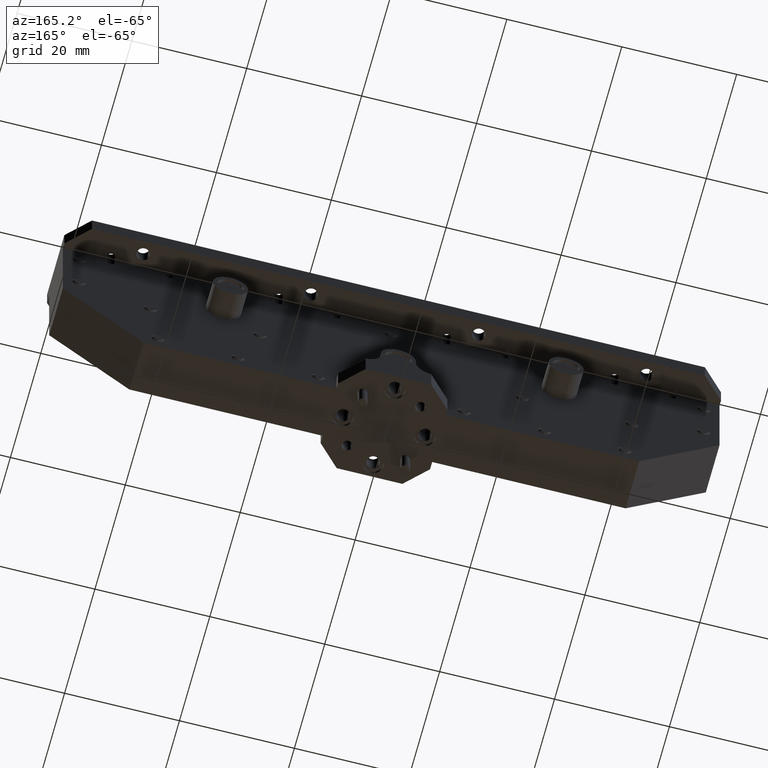
[diagram: clean part render]
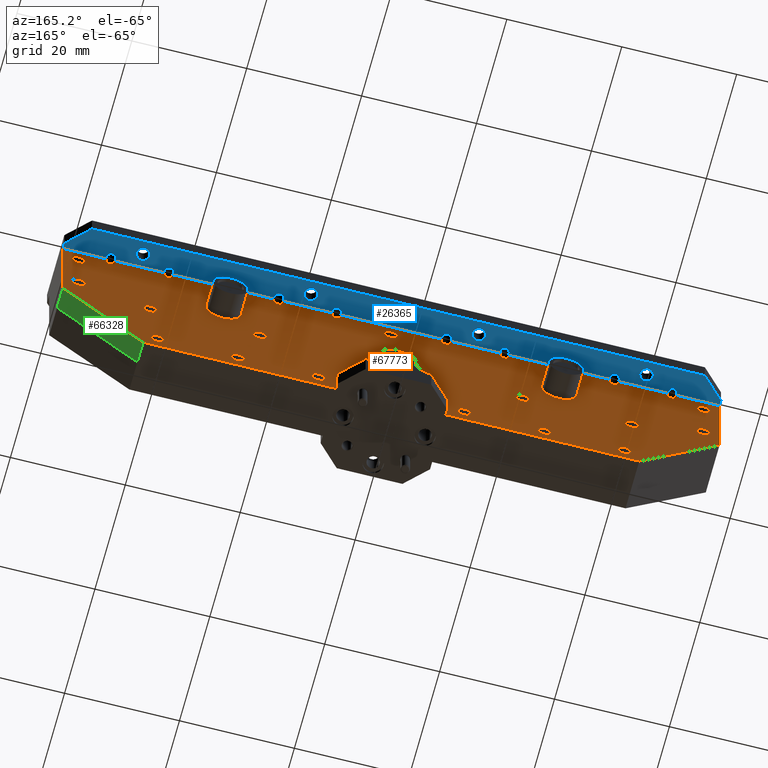
[diagram: same view with three faces highlighted in distinct colors, each labeled with its STEP entity id]
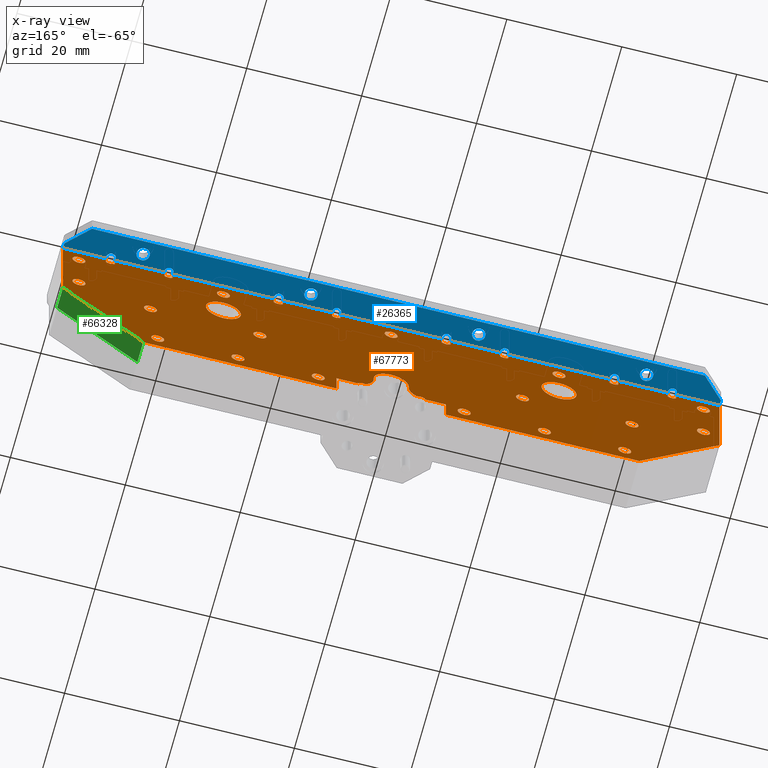
[diagram: x-ray of the same camera — body ghosted, the three highlighted faces saturated]
A machine part, auxiliary view with three faces highlighted in distinct colors.
The next image is the same camera in x-ray (body ghosted, the three faces saturated) — at least one of them is partly hidden behind the body in this view.
Their STEP definitions:

[orange] entity #67773 — the highlighted planar face has unit normal (0, -1, 0).
#45 = AXIS2_PLACEMENT_3D ( 'NONE', #103034, #53309, #3115 ) ;
#114 = CARTESIAN_POINT ( 'NONE',  ( 1.536288600358622000, 0.1499999999999999900, 0.1858338379013907400 ) ) ;
#165 = CARTESIAN_POINT ( 'NONE',  ( 1.699999999999998200, 0.1499999999999999900, -0.9250000000000001600 ) ) ;
#233 = AXIS2_PLACEMENT_3D ( 'NONE', #3299, #61993, #11684 ) ;
#374 = DIRECTION ( 'NONE',  ( 0.0000000000000000000, 0.0000000000000000000, 1.000000000000000000 ) ) ;
#467 = ORIENTED_EDGE ( 'NONE', *, *, #56084, .F. ) ;
#566 = CARTESIAN_POINT ( 'NONE',  ( -1.599999999999999900, 0.1500000000000000500, -0.7675000000000005200 ) ) ;
#588 = LINE ( 'NONE', #82981, #64930 ) ;
#591 = ORIENTED_EDGE ( 'NONE', *, *, #44220, .T. ) ;
#622 = EDGE_CURVE ( 'NONE', #40687, #21455, #21241, .T. ) ;
#672 = VECTOR ( 'NONE', #86181, 39.37007874015748100 ) ;
#753 = VECTOR ( 'NONE', #8675, 39.37007874015748100 ) ;
#811 = CARTESIAN_POINT ( 'NONE',  ( 1.554491263112224700, 0.1499999999999999900, 0.1949999999999846600 ) ) ;
#965 = CARTESIAN_POINT ( 'NONE',  ( 1.149999999999999900, 0.1500000000000000500, 0.1250000000000003100 ) ) ;
#1091 = CARTESIAN_POINT ( 'NONE',  ( -0.7762778678929021000, 0.1499999999999999700, 0.1836378929655188600 ) ) ;
#1239 = CARTESIAN_POINT ( 'NONE',  ( -0.3448010953484182400, 0.1499999999999999900, 0.1950000000000003100 ) ) ;
#1268 = VECTOR ( 'NONE', #95054, 39.37007874015748100 ) ;
#1487 = LINE ( 'NONE', #21654, #63155 ) ;
#1525 = CIRCLE ( 'NONE', #105752, 0.1199999999999998800 ) ;
#1564 = ORIENTED_EDGE ( 'NONE', *, *, #46166, .F. ) ;
#1580 = FACE_BOUND ( 'NONE', #65898, .T. ) ;
#1653 = ORIENTED_EDGE ( 'NONE', *, *, #61610, .T. ) ;
#1743 = CARTESIAN_POINT ( 'NONE',  ( 1.497761172470325900, 0.1499999999999999900, 0.1950000000000000300 ) ) ;
#1770 = LINE ( 'NONE', #50237, #66167 ) ;
#2191 = CARTESIAN_POINT ( 'NONE',  ( -1.149999999999999900, 0.1500000000000000500, 0.1250000000000003100 ) ) ;
#2278 = B_SPLINE_CURVE_WITH_KNOTS ( 'NONE', 3,
 ( #42624, #51074, #9297, #68078, #17656, #76412, #26118, #84700, #34515, #92982, #42987, #101238, #51440, #1239 ),
 .UNSPECIFIED., .F., .F.,
 ( 4, 2, 2, 2, 2, 2, 4 ),
 ( 0.004142231111657583900, 0.004578358877393636300, 0.004796422760261666000, 0.005014486643129695600, 0.005232550525997724400, 0.005450614408865753200, 0.005886742174601813400 ),
 .UNSPECIFIED. ) ;
#2525 = EDGE_CURVE ( 'NONE', #62374, #35143, #43848, .T. ) ;
#2571 = VECTOR ( 'NONE', #70074, 39.37007874015748100 ) ;
#2951 = CARTESIAN_POINT ( 'NONE',  ( 0.0000000000000000000, 0.1499999999999999900, 0.0000000000000000000 ) ) ;
#3077 = CARTESIAN_POINT ( 'NONE',  ( 1.945263712787908900, 0.1500000000000000800, 0.1894592701082589100 ) ) ;
#3115 = DIRECTION ( 'NONE',  ( 0.0000000000000000000, 0.0000000000000000000, 1.000000000000000000 ) ) ;
#3206 = EDGE_LOOP ( 'NONE', ( #92915, #44736 ) ) ;
#3299 = CARTESIAN_POINT ( 'NONE',  ( 1.049999999999999800, 0.1500000000000000500, -0.8120000000000003900 ) ) ;
#3573 = CIRCLE ( 'NONE', #29304, 0.1199999999999999500 ) ;
#3574 = CARTESIAN_POINT ( 'NONE',  ( -2.139999999999999700, 0.1500000000000000500, -0.2249999999999996400 ) ) ;
#3580 = DIRECTION ( 'NONE',  ( 0.0000000000000000000, 0.0000000000000000000, 1.000000000000000000 ) ) ;
#3581 = CARTESIAN_POINT ( 'NONE',  ( 1.649999999999999700, 0.1500000000000000500, -0.4194999999999992600 ) ) ;
#3597 = DIRECTION ( 'NONE',  ( 0.0000000000000000000, 0.0000000000000000000, -1.000000000000000000 ) ) ;
#3739 = B_SPLINE_CURVE_WITH_KNOTS ( 'NONE', 3,
 ( #96051, #104253, #43638, #11711, #10291, #10733, #10644, #96488, #105077, #114, #51498, #51869, #52926, #53786 ),
 .UNSPECIFIED., .F., .F.,
 ( 4, 2, 2, 2, 2, 2, 4 ),
 ( 0.003820113746241979200, 0.004213695920972548200, 0.004410487008337822900, 0.004607278095703097600, 0.004804069183068372300, 0.005000860270433647000, 0.005394442445164216400 ),
 .UNSPECIFIED. ) ;
#3887 = ORIENTED_EDGE ( 'NONE', *, *, #96518, .F. ) ;
#4057 = VERTEX_POINT ( 'NONE', #20461 ) ;
#4063 = EDGE_CURVE ( 'NONE', #45999, #82837, #19640, .T. ) ;
#4515 = LINE ( 'NONE', #48517, #90872 ) ;
#4582 = DIRECTION ( 'NONE',  ( -0.0000000000000000000, 1.000000000000000000, -0.0000000000000000000 ) ) ;
#4645 = ORIENTED_EDGE ( 'NONE', *, *, #103315, .T. ) ;
#4688 = CARTESIAN_POINT ( 'NONE',  ( -1.557451340234139900, 0.1499999999999999900, 0.1950000000000000300 ) ) ;
#4829 = VERTEX_POINT ( 'NONE', #100218 ) ;
#5226 = EDGE_CURVE ( 'NONE', #71015, #35382, #102385, .T. ) ;
#5379 = LINE ( 'NONE', #99410, #91732 ) ;
#5388 = EDGE_CURVE ( 'NONE', #20609, #8268, #1770, .T. ) ;
#5573 = CARTESIAN_POINT ( 'NONE',  ( -1.952238827529673600, 0.1499999999999999900, 0.1950000000000000300 ) ) ;
#5879 = EDGE_CURVE ( 'NONE', #27012, #81375, #3739, .T. ) ;
#5918 = CARTESIAN_POINT ( 'NONE',  ( -1.895508736887774800, 0.1499999999999999900, 0.1949999999999847100 ) ) ;
#6201 = CARTESIAN_POINT ( 'NONE',  ( 1.600000000000000300, 0.1500000000000000500, -0.8564999999999991500 ) ) ;
#6457 = CARTESIAN_POINT ( 'NONE',  ( 0.7876006221321424400, 0.1500000000000000200, 0.1857390656520916400 ) ) ;
#6499 = CARTESIAN_POINT ( 'NONE',  ( 0.2005684074176618300, 0.1499999999999999900, -0.7442306900326187700 ) ) ;
#6642 = EDGE_LOOP ( 'NONE', ( #47248, #107074 ) ) ;
#6717 = DIRECTION ( 'NONE',  ( 0.0000000000000000000, 0.0000000000000000000, 1.000000000000000000 ) ) ;
#6769 = DIRECTION ( 'NONE',  ( -0.0000000000000000000, 1.000000000000000000, -0.0000000000000000000 ) ) ;
#6803 = ORIENTED_EDGE ( 'NONE', *, *, #102969, .T. ) ;
#6881 = CARTESIAN_POINT ( 'NONE',  ( -0.8022388275296735700, 0.1499999999999999900, 0.1950000000000000300 ) ) ;
#7167 = EDGE_CURVE ( 'NONE', #74315, #42057, #57465, .T. ) ;
#7408 = VERTEX_POINT ( 'NONE', #50010 ) ;
#7587 = CARTESIAN_POINT ( 'NONE',  ( -1.504736287212092000, 0.1499999999999999900, 0.1894592701082589100 ) ) ;
#7632 = ORIENTED_EDGE ( 'NONE', *, *, #102241, .T. ) ;
#7668 = ORIENTED_EDGE ( 'NONE', *, *, #97739, .T. ) ;
#7696 = CARTESIAN_POINT ( 'NONE',  ( -0.2258320770568925400, 0.1500000000000000500, -0.7475464904255644200 ) ) ;
#7697 = DIRECTION ( 'NONE',  ( 0.0000000000000000000, 0.0000000000000000000, 1.000000000000000000 ) ) ;
#8177 = CARTESIAN_POINT ( 'NONE',  ( 0.3788506155858855100, 0.1499999999999999700, 0.1836794531516312300 ) ) ;
#8194 = VECTOR ( 'NONE', #80147, 39.37007874015748100 ) ;
#8268 = VERTEX_POINT ( 'NONE', #82402 ) ;
#8353 = VERTEX_POINT ( 'NONE', #33610 ) ;
#8464 = CARTESIAN_POINT ( 'NONE',  ( -1.649999999999999700, 0.1500000000000000500, -0.3749999999999997800 ) ) ;
#8558 = DIRECTION ( 'NONE',  ( -0.7071067811865492400, -0.0000000000000000000, -0.7071067811865459100 ) ) ;
#8593 = CARTESIAN_POINT ( 'NONE',  ( 0.1199999999999988400, 0.1499999999999999900, -0.6250000000000001100 ) ) ;
#8675 = DIRECTION ( 'NONE',  ( -1.000000000000000000, -0.0000000000000000000, 8.034847040189021100E-017 ) ) ;
#9158 = VECTOR ( 'NONE', #20805, 39.37007874015748100 ) ;
#9228 = LINE ( 'NONE', #93199, #31442 ) ;
#9233 = EDGE_CURVE ( 'NONE', #52240, #48064, #66019, .T. ) ;
#9237 = CARTESIAN_POINT ( 'NONE',  ( -1.952238827529673600, 0.1499999999999999900, 0.1950000000000000300 ) ) ;
#9297 = CARTESIAN_POINT ( 'NONE',  ( -0.3974492089406334000, 0.1499999999999999400, 0.1894209283568170900 ) ) ;
#9329 = DIRECTION ( 'NONE',  ( -0.0000000000000000000, 1.000000000000000000, -0.0000000000000000000 ) ) ;
#9365 = DIRECTION ( 'NONE',  ( 0.0000000000000000000, 0.0000000000000000000, 1.000000000000000000 ) ) ;
#9487 = ORIENTED_EDGE ( 'NONE', *, *, #56001, .T. ) ;
#9495 = CARTESIAN_POINT ( 'NONE',  ( -0.7685826124977089800, 0.1500000000000000200, 0.1842374201187034200 ) ) ;
#9542 = DIRECTION ( 'NONE',  ( -4.268512490100409400E-016, 0.0000000000000000000, 1.000000000000000000 ) ) ;
#9607 = CIRCLE ( 'NONE', #36127, 0.04449999999999948400 ) ;
#9654 = ORIENTED_EDGE ( 'NONE', *, *, #85965, .F. ) ;
#9726 = EDGE_CURVE ( 'NONE', #40166, #37656, #80052, .T. ) ;
#9804 = DIRECTION ( 'NONE',  ( -0.0000000000000000000, -0.0000000000000000000, 1.000000000000000000 ) ) ;
#10001 = AXIS2_PLACEMENT_3D ( 'NONE', #73398, #22986, #81685 ) ;
#10291 = CARTESIAN_POINT ( 'NONE',  ( 1.516232268394620100, 0.1499999999999999900, 0.1857259215789929300 ) ) ;
#10561 = VERTEX_POINT ( 'NONE', #52513 ) ;
#10587 = DIRECTION ( 'NONE',  ( 0.0000000000000000000, 0.0000000000000000000, 1.000000000000000000 ) ) ;
#10628 = VECTOR ( 'NONE', #72474, 39.37007874015748100 ) ;
#10633 = EDGE_CURVE ( 'NONE', #95655, #59526, #23481, .T. ) ;
#10644 = CARTESIAN_POINT ( 'NONE',  ( 1.523722132107097500, 0.1500000000000000200, 0.1836378929655189100 ) ) ;
#10648 = AXIS2_PLACEMENT_3D ( 'NONE', #40843, #99129, #49361 ) ;
#10733 = CARTESIAN_POINT ( 'NONE',  ( 1.521136587996360500, 0.1499999999999999900, 0.1841609887189386000 ) ) ;
#10746 = CARTESIAN_POINT ( 'NONE',  ( 1.897539779201811200, 0.1500000000000000200, 0.1921957309837062100 ) ) ;
#11121 = CARTESIAN_POINT ( 'NONE',  ( -1.049999999999999800, 0.1500000000000000500, -0.7675000000000006300 ) ) ;
#11288 = VERTEX_POINT ( 'NONE', #4688 ) ;
#11329 = DIRECTION ( 'NONE',  ( 0.0000000000000000000, -0.0000000000000000000, -1.000000000000000000 ) ) ;
#11339 = CARTESIAN_POINT ( 'NONE',  ( 2.250000000000000400, 0.1499999999999999900, 0.3749999999999997800 ) ) ;
#11340 = VERTEX_POINT ( 'NONE', #47193 ) ;
#11454 = CARTESIAN_POINT ( 'NONE',  ( 1.955198904651581600, 0.1499999999999999900, 0.1950000000000002300 ) ) ;
#11565 = ORIENTED_EDGE ( 'NONE', *, *, #10633, .T. ) ;
#11684 = DIRECTION ( 'NONE',  ( 0.0000000000000000000, 0.0000000000000000000, 1.000000000000000000 ) ) ;
#11711 = CARTESIAN_POINT ( 'NONE',  ( 1.513845314674737700, 0.1499999999999999900, 0.1867492879359235200 ) ) ;
#11737 = VERTEX_POINT ( 'NONE', #53315 ) ;
#11901 = ORIENTED_EDGE ( 'NONE', *, *, #16537, .T. ) ;
#11968 = DIRECTION ( 'NONE',  ( 0.0000000000000000000, 0.0000000000000000000, 1.000000000000000000 ) ) ;
#12311 = CIRCLE ( 'NONE', #63271, 0.04449999999999948400 ) ;
#12620 = CARTESIAN_POINT ( 'NONE',  ( 1.149999999999999900, 0.1499999999999999700, -0.1250000000000001700 ) ) ;
#12740 = ORIENTED_EDGE ( 'NONE', *, *, #73092, .T. ) ;
#12887 = VERTEX_POINT ( 'NONE', #21168 ) ;
#13003 = DIRECTION ( 'NONE',  ( 0.0000000000000000000, 0.0000000000000000000, -1.000000000000000000 ) ) ;
#13095 = EDGE_LOOP ( 'NONE', ( #100947, #35561 ) ) ;
#13138 = EDGE_CURVE ( 'NONE', #14501, #75212, #1525, .T. ) ;
#13158 = VERTEX_POINT ( 'NONE', #25599 ) ;
#13208 = LINE ( 'NONE', #22767, #10628 ) ;
#13254 = FACE_OUTER_BOUND ( 'NONE', #31497, .T. ) ;
#13322 = CARTESIAN_POINT ( 'NONE',  ( -1.557451340234139700, 0.1499999999999999900, 0.3750000000000000600 ) ) ;
#13336 = EDGE_CURVE ( 'NONE', #55767, #4829, #105793, .T. ) ;
#13613 = CARTESIAN_POINT ( 'NONE',  ( 5.449678256205679700E-018, 0.1500000000000000500, -0.4194999999999992600 ) ) ;
#13897 = CARTESIAN_POINT ( 'NONE',  ( -1.943177421391361300, 0.1499999999999999900, 0.1900249512153215400 ) ) ;
#13979 = EDGE_CURVE ( 'NONE', #107505, #81091, #63887, .T. ) ;
#14050 = CARTESIAN_POINT ( 'NONE',  ( 0.8051989046515821700, 0.1499999999999999900, 0.1950000000000002800 ) ) ;
#14071 = CARTESIAN_POINT ( 'NONE',  ( 1.892548659765860100, 0.1499999999999999900, 0.3750000000000000600 ) ) ;
#14091 = CARTESIAN_POINT ( 'NONE',  ( 1.600000000000000300, 0.1500000000000000500, -0.7675000000000001800 ) ) ;
#14143 = EDGE_CURVE ( 'NONE', #55378, #4057, #98749, .T. ) ;
#14256 = CARTESIAN_POINT ( 'NONE',  ( -1.049999999999999800, 0.1500000000000000500, -0.8564999999999995900 ) ) ;
#14501 = VERTEX_POINT ( 'NONE', #63748 ) ;
#14600 = EDGE_CURVE ( 'NONE', #75260, #11340, #4515, .T. ) ;
#14646 = DIRECTION ( 'NONE',  ( -0.0000000000000000000, 1.000000000000000000, -0.0000000000000000000 ) ) ;
#14654 = CARTESIAN_POINT ( 'NONE',  ( -1.049999999999999800, 0.1500000000000000500, -0.8120000000000000600 ) ) ;
#14672 = EDGE_CURVE ( 'NONE', #80004, #53949, #77955, .T. ) ;
#14815 = CARTESIAN_POINT ( 'NONE',  ( 0.8002457017466049200, 0.1499999999999999700, 0.1922170344516766500 ) ) ;
#14865 = CARTESIAN_POINT ( 'NONE',  ( 0.1945571465321666900, 0.1499999999999999900, -0.7446461339591226000 ) ) ;
#14879 = CIRCLE ( 'NONE', #53319, 0.1200000000000005900 ) ;
#15123 = ORIENTED_EDGE ( 'NONE', *, *, #69947, .F. ) ;
#15554 = LINE ( 'NONE', #95564, #79847 ) ;
#15604 = AXIS2_PLACEMENT_3D ( 'NONE', #48930, #106915, #57339 ) ;
#15655 = VERTEX_POINT ( 'NONE', #68022 ) ;
#15678 = CARTESIAN_POINT ( 'NONE',  ( -0.1838137954700175300, 0.1499999999999999700, -0.7412056973242632200 ) ) ;
#15730 = CARTESIAN_POINT ( 'NONE',  ( 1.497761172470325900, 0.1499999999999999900, 0.2449999999999997700 ) ) ;
#15900 = FACE_BOUND ( 'NONE', #33744, .T. ) ;
#15944 = CARTESIAN_POINT ( 'NONE',  ( -1.494801095348417900, 0.1499999999999999900, 0.1950000000000002300 ) ) ;
#16103 = EDGE_CURVE ( 'NONE', #88954, #66905, #89501, .T. ) ;
#16137 = VECTOR ( 'NONE', #23618, 39.37007874015748100 ) ;
#16512 = ORIENTED_EDGE ( 'NONE', *, *, #48767, .T. ) ;
#16537 = EDGE_CURVE ( 'NONE', #81375, #74961, #94808, .T. ) ;
#16543 = CARTESIAN_POINT ( 'NONE',  ( 0.3862886003586227200, 0.1499999999999999700, 0.1858338379013906600 ) ) ;
#16596 = EDGE_CURVE ( 'NONE', #8353, #11737, #22849, .T. ) ;
#16816 = DIRECTION ( 'NONE',  ( 0.0000000000000000000, 0.0000000000000000000, 1.000000000000000000 ) ) ;
#17119 = ORIENTED_EDGE ( 'NONE', *, *, #92989, .T. ) ;
#17626 = EDGE_CURVE ( 'NONE', #59978, #50420, #95625, .T. ) ;
#17656 = CARTESIAN_POINT ( 'NONE',  ( -0.3871015480844097700, 0.1499999999999999700, 0.1844951420047603000 ) ) ;
#17661 = CARTESIAN_POINT ( 'NONE',  ( 1.649999999999999700, 0.1500000000000000500, -0.3305000000000002900 ) ) ;
#17747 = VERTEX_POINT ( 'NONE', #11121 ) ;
#17861 = CARTESIAN_POINT ( 'NONE',  ( -0.7613744911860255100, 0.1499999999999999900, 0.1868460783373942500 ) ) ;
#18062 = ORIENTED_EDGE ( 'NONE', *, *, #4063, .F. ) ;
#18084 = ORIENTED_EDGE ( 'NONE', *, *, #48612, .T. ) ;
#18244 = VECTOR ( 'NONE', #102900, 39.37007874015748100 ) ;
#18311 = CARTESIAN_POINT ( 'NONE',  ( -1.895508736887774800, 0.1499999999999999900, 0.1949999999999847100 ) ) ;
#18520 = FACE_BOUND ( 'NONE', #34429, .T. ) ;
#18701 = AXIS2_PLACEMENT_3D ( 'NONE', #91350, #41280, #99570 ) ;
#18809 = ORIENTED_EDGE ( 'NONE', *, *, #91245, .T. ) ;
#18833 = EDGE_CURVE ( 'NONE', #82837, #45999, #37578, .T. ) ;
#18980 = DIRECTION ( 'NONE',  ( -0.0000000000000000000, 1.000000000000000000, -0.0000000000000000000 ) ) ;
#19065 = DIRECTION ( 'NONE',  ( 1.000000000000000000, 0.0000000000000000000, 1.214154663850783700E-016 ) ) ;
#19125 = EDGE_CURVE ( 'NONE', #74961, #28603, #102865, .T. ) ;
#19175 = VERTEX_POINT ( 'NONE', #15730 ) ;
#19370 = PLANE ( 'NONE',  #104717 ) ;
#19476 = CARTESIAN_POINT ( 'NONE',  ( 1.902550791059366600, 0.1499999999999999900, 0.1894209283568170600 ) ) ;
#19640 = CIRCLE ( 'NONE', #89416, 0.04449999999999948400 ) ;
#19683 = LINE ( 'NONE', #44538, #105754 ) ;
#20146 = DIRECTION ( 'NONE',  ( -0.0000000000000000000, 1.000000000000000000, -0.0000000000000000000 ) ) ;
#20461 = CARTESIAN_POINT ( 'NONE',  ( 1.699999999999998200, 0.1499999999999999900, -0.9250000000000001600 ) ) ;
#20605 = DIRECTION ( 'NONE',  ( 0.0000000000000000000, 0.0000000000000000000, 1.000000000000000000 ) ) ;
#20609 = VERTEX_POINT ( 'NONE', #63513 ) ;
#20656 = CIRCLE ( 'NONE', #104067, 0.04449999999999948400 ) ;
#20689 = VECTOR ( 'NONE', #13003, 39.37007874015748100 ) ;
#20750 = DIRECTION ( 'NONE',  ( 0.0000000000000000000, 0.0000000000000000000, -1.000000000000000000 ) ) ;
#20805 = DIRECTION ( 'NONE',  ( -0.0000000000000000000, -0.0000000000000000000, 1.000000000000000000 ) ) ;
#20813 = LINE ( 'NONE', #11339, #18244 ) ;
#20968 = CARTESIAN_POINT ( 'NONE',  ( -1.599999999999999900, 0.1500000000000000500, -0.8119999999999999400 ) ) ;
#20995 = DIRECTION ( 'NONE',  ( 0.0000000000000000000, 0.0000000000000000000, -1.000000000000000000 ) ) ;
#21051 = DIRECTION ( 'NONE',  ( -0.0000000000000000000, 1.000000000000000000, -0.0000000000000000000 ) ) ;
#21099 = FACE_BOUND ( 'NONE', #57179, .T. ) ;
#21168 = CARTESIAN_POINT ( 'NONE',  ( -1.895508736887759200, 0.1499999999999999900, 0.2449999999999992700 ) ) ;
#21218 = CARTESIAN_POINT ( 'NONE',  ( -0.7455087368877589800, 0.1499999999999999900, 0.3750000000000000600 ) ) ;
#21241 = CIRCLE ( 'NONE', #60448, 0.04449999999999948400 ) ;
#21399 = CARTESIAN_POINT ( 'NONE',  ( 1.393242476768774200E-016, 0.1499999999999999900, -0.7649999999999999000 ) ) ;
#21455 = VERTEX_POINT ( 'NONE', #86609 ) ;
#21461 = VECTOR ( 'NONE', #19065, 39.37007874015748100 ) ;
#21654 = CARTESIAN_POINT ( 'NONE',  ( -2.974678926434414000E-017, 0.1499999999999999900, 0.2449999999999995000 ) ) ;
#21938 = ORIENTED_EDGE ( 'NONE', *, *, #16103, .T. ) ;
#22097 = DIRECTION ( 'NONE',  ( 0.0000000000000000000, 0.0000000000000000000, -1.000000000000000000 ) ) ;
#22215 = AXIS2_PLACEMENT_3D ( 'NONE', #56990, #6769, #65512 ) ;
#22293 = CARTESIAN_POINT ( 'NONE',  ( -1.933767731605380100, 0.1499999999999999900, 0.1857259215789930100 ) ) ;
#22501 = DIRECTION ( 'NONE',  ( -0.0000000000000000000, -0.0000000000000000000, 1.000000000000000000 ) ) ;
#22767 = CARTESIAN_POINT ( 'NONE',  ( -2.974678926434414000E-017, 0.1499999999999999900, 0.2449999999999995000 ) ) ;
#22849 = LINE ( 'NONE', #68932, #672 ) ;
#22924 = LINE ( 'NONE', #13322, #45286 ) ;
#22986 = DIRECTION ( 'NONE',  ( -0.0000000000000000000, 1.000000000000000000, -0.0000000000000000000 ) ) ;
#23041 = DIRECTION ( 'NONE',  ( 0.0000000000000000000, 0.0000000000000000000, 1.000000000000000000 ) ) ;
#23062 = EDGE_CURVE ( 'NONE', #53953, #11288, #22924, .T. ) ;
#23086 = CARTESIAN_POINT ( 'NONE',  ( -0.3448010953484182400, 0.1499999999999999900, 0.1950000000000003100 ) ) ;
#23258 = CARTESIAN_POINT ( 'NONE',  ( 0.1850955613153358600, 0.1499999999999999900, -0.7479848390912282600 ) ) ;
#23260 = CIRCLE ( 'NONE', #22215, 0.04449999999999948400 ) ;
#23289 = VERTEX_POINT ( 'NONE', #92289 ) ;
#23305 = EDGE_LOOP ( 'NONE', ( #3887, #15123 ) ) ;
#23481 = LINE ( 'NONE', #86764, #1268 ) ;
#23502 = DIRECTION ( 'NONE',  ( 0.0000000000000000000, 0.0000000000000000000, -1.000000000000000000 ) ) ;
#23509 = VECTOR ( 'NONE', #54866, 39.37007874015748100 ) ;
#23618 = DIRECTION ( 'NONE',  ( 1.000000000000000000, 0.0000000000000000000, 1.214154663850783700E-016 ) ) ;
#23806 = FACE_BOUND ( 'NONE', #98692, .T. ) ;
#23883 = CARTESIAN_POINT ( 'NONE',  ( 1.497761172470325900, 0.1499999999999999900, 0.3750000000000000600 ) ) ;
#24019 = CARTESIAN_POINT ( 'NONE',  ( -1.547449208940632900, 0.1499999999999999900, 0.1894209283568170600 ) ) ;
#24141 = CIRCLE ( 'NONE', #45, 0.04449999999999948400 ) ;
#24192 = DIRECTION ( 'NONE',  ( 0.0000000000000000000, -1.000000000000000000, 0.0000000000000000000 ) ) ;
#24366 = CARTESIAN_POINT ( 'NONE',  ( -1.149999999999999900, 0.1499999999999999700, -0.2450000000000000500 ) ) ;
#24466 = EDGE_CURVE ( 'NONE', #87636, #36665, #19683, .T. ) ;
#24638 = CARTESIAN_POINT ( 'NONE',  ( 1.049999999999999800, 0.1500000000000000500, -0.7675000000000008500 ) ) ;
#24917 = ORIENTED_EDGE ( 'NONE', *, *, #86940, .F. ) ;
#24994 = CARTESIAN_POINT ( 'NONE',  ( 0.3955416636602237000, 0.1499999999999999900, 0.1900878805995128400 ) ) ;
#25599 = CARTESIAN_POINT ( 'NONE',  ( 1.149999999999999900, 0.1500000000000000500, 0.08050000000000082100 ) ) ;
#25972 = CARTESIAN_POINT ( 'NONE',  ( -0.8022388275296735700, 0.1499999999999999900, 0.1950000000000000300 ) ) ;
#26118 = CARTESIAN_POINT ( 'NONE',  ( -0.3788522302975967900, 0.1499999999999999700, 0.1819899896287413600 ) ) ;
#26318 = CARTESIAN_POINT ( 'NONE',  ( -0.7499746727515078600, 0.1499999999999999900, 0.1925247185662248000 ) ) ;
#26338 = VECTOR ( 'NONE', #74540, 39.37007874015748100 ) ;
#26457 = CIRCLE ( 'NONE', #68473, 0.04449999999999948400 ) ;
#26515 = CARTESIAN_POINT ( 'NONE',  ( -1.142647958888417800E-015, 0.1499999999999999700, -0.6250000000000001100 ) ) ;
#27012 = VERTEX_POINT ( 'NONE', #1743 ) ;
#27197 = EDGE_CURVE ( 'NONE', #10561, #32297, #96825, .T. ) ;
#27338 = EDGE_LOOP ( 'NONE', ( #74028, #18062 ) ) ;
#27663 = CARTESIAN_POINT ( 'NONE',  ( -0.2400000000000011800, 0.1499999999999999700, -0.6450000000000001300 ) ) ;
#27927 = CARTESIAN_POINT ( 'NONE',  ( 1.912898451915590300, 0.1499999999999999900, 0.1844951420047603900 ) ) ;
#27941 = ORIENTED_EDGE ( 'NONE', *, *, #27197, .F. ) ;
#27998 = DIRECTION ( 'NONE',  ( -1.000000000000000000, -0.0000000000000000000, 8.034847040189021100E-017 ) ) ;
#28028 = LINE ( 'NONE', #68337, #50390 ) ;
#28200 = B_SPLINE_CURVE_WITH_KNOTS ( 'NONE', 3,
 ( #25972, #76264, #92833, #42824, #101075, #51288, #1091, #59780, #9495, #68297, #17861, #76622, #26318, #84890 ),
 .UNSPECIFIED., .F., .F.,
 ( 4, 2, 2, 2, 2, 2, 4 ),
 ( 0.003820113746241976200, 0.004213695920972534300, 0.004410487008337813300, 0.004607278095703092400, 0.004804069183068371400, 0.005000860270433650500, 0.005394442445164218100 ),
 .UNSPECIFIED. ) ;
#28594 = CARTESIAN_POINT ( 'NONE',  ( 1.149999999999999900, 0.1500000000000000500, 0.1694999999999997900 ) ) ;
#28603 = VERTEX_POINT ( 'NONE', #103427 ) ;
#28653 = AXIS2_PLACEMENT_3D ( 'NONE', #103522, #53804, #3597 ) ;
#29202 = CARTESIAN_POINT ( 'NONE',  ( 0.2399999999999988500, 0.1499999999999999900, -0.7649999999999999000 ) ) ;
#29203 = AXIS2_PLACEMENT_3D ( 'NONE', #40684, #98973, #49206 ) ;
#29304 = AXIS2_PLACEMENT_3D ( 'NONE', #87468, #37345, #95759 ) ;
#29542 = VERTEX_POINT ( 'NONE', #61286 ) ;
#29712 = CARTESIAN_POINT ( 'NONE',  ( -1.699999999999997500, 0.1499999999999999900, -0.9249999999999998200 ) ) ;
#30048 = CARTESIAN_POINT ( 'NONE',  ( 2.250000000000000400, 0.1499999999999999900, -0.3750000000000003900 ) ) ;
#30722 = CARTESIAN_POINT ( 'NONE',  ( -1.926277867892902500, 0.1500000000000000200, 0.1836378929655190000 ) ) ;
#30862 = ORIENTED_EDGE ( 'NONE', *, *, #5226, .F. ) ;
#30995 = CARTESIAN_POINT ( 'NONE',  ( -1.557451340234139700, 0.1499999999999999900, 0.2449999999999993000 ) ) ;
#31250 = CIRCLE ( 'NONE', #59142, 0.04449999999999948400 ) ;
#31264 = CARTESIAN_POINT ( 'NONE',  ( 0.7602785172579856800, 0.1499999999999999900, 0.1856782066199718600 ) ) ;
#31314 = CARTESIAN_POINT ( 'NONE',  ( 0.2226614844736424800, 0.1499999999999999900, -0.7530772311790900900 ) ) ;
#31320 = CARTESIAN_POINT ( 'NONE',  ( -2.249999999999999600, 0.1499999999999997700, 0.2449999999999992200 ) ) ;
#31442 = VECTOR ( 'NONE', #34712, 39.37007874015748100 ) ;
#31474 = EDGE_CURVE ( 'NONE', #15655, #68234, #52765, .T. ) ;
#31497 = EDGE_LOOP ( 'NONE', ( #9487, #18809, #47714, #63092, #85717, #62240, #71368, #11565, #90634, #7632, #80270, #69060, #68614, #59317, #58024, #73791, #16512, #6803, #64228, #75030, #55766, #11901, #31508, #87110, #81282, #100603, #72205, #49806, #108185, #100551, #43129, #18084, #47192, #17119, #61392, #32886, #96472, #103073, #94845, #43164, #591, #21938, #7668, #78879, #61505, #12740, #74377, #73273, #49921, #108123, #68719, #4645, #1653, #94707, #102002 ) ) ;
#31508 = ORIENTED_EDGE ( 'NONE', *, *, #19125, .T. ) ;
#31846 = DIRECTION ( 'NONE',  ( 1.000000000000000000, 0.0000000000000000000, 1.214154663850783700E-016 ) ) ;
#32040 = B_SPLINE_CURVE_WITH_KNOTS ( 'NONE', 3,
 ( #65992, #74038, #24019, #82647, #32422, #90948, #40869, #99163, #49387, #107381, #57822, #7587, #66353, #15944 ),
 .UNSPECIFIED., .F., .F.,
 ( 4, 2, 2, 2, 2, 2, 4 ),
 ( 0.004142231111657614300, 0.004578358877393673600, 0.004796422760261703300, 0.005014486643129733800, 0.005232550525997763400, 0.005450614408865794000, 0.005886742174601835100 ),
 .UNSPECIFIED. ) ;
#32297 = VERTEX_POINT ( 'NONE', #53231 ) ;
#32422 = CARTESIAN_POINT ( 'NONE',  ( -1.537101548084409000, 0.1499999999999999700, 0.1844951420047603600 ) ) ;
#32527 = CARTESIAN_POINT ( 'NONE',  ( -0.1907215516029445700, 0.1499999999999999700, -0.7384628256782805900 ) ) ;
#32886 = ORIENTED_EDGE ( 'NONE', *, *, #86307, .T. ) ;
#32916 = VERTEX_POINT ( 'NONE', #52739 ) ;
#33363 = CARTESIAN_POINT ( 'NONE',  ( 0.4044912631122255000, 0.1499999999999999900, 0.1949999999999847400 ) ) ;
#33610 = CARTESIAN_POINT ( 'NONE',  ( -1.494801095348426800, 0.1499999999999999900, 0.2449999999999993000 ) ) ;
#33744 = EDGE_LOOP ( 'NONE', ( #101319, #49306 ) ) ;
#33877 = LINE ( 'NONE', #64789, #75985 ) ;
#33959 = DIRECTION ( 'NONE',  ( -0.0000000000000000000, 1.000000000000000000, -0.0000000000000000000 ) ) ;
#34192 = CARTESIAN_POINT ( 'NONE',  ( -2.139999999999999700, 0.1500000000000000500, 0.1250000000000003100 ) ) ;
#34350 = CIRCLE ( 'NONE', #29203, 0.1199999999999999500 ) ;
#34409 = CARTESIAN_POINT ( 'NONE',  ( -1.049999999999999800, 0.1500000000000000500, -0.8120000000000000600 ) ) ;
#34429 = EDGE_LOOP ( 'NONE', ( #72562, #44864 ) ) ;
#34510 = VERTEX_POINT ( 'NONE', #8593 ) ;
#34515 = CARTESIAN_POINT ( 'NONE',  ( -0.3703330854161067100, 0.1499999999999999900, 0.1827008451999387600 ) ) ;
#34712 = DIRECTION ( 'NONE',  ( 1.000000000000000000, 0.0000000000000000000, 1.214154663850783700E-016 ) ) ;
#34713 = CARTESIAN_POINT ( 'NONE',  ( 0.1199999999999988400, 0.1499999999999999900, -0.6449999999999999100 ) ) ;
#34789 = CARTESIAN_POINT ( 'NONE',  ( 2.139999999999999700, 0.1500000000000000500, 0.1250000000000003100 ) ) ;
#34883 = DIRECTION ( 'NONE',  ( 0.0000000000000000000, 0.0000000000000000000, -1.000000000000000000 ) ) ;
#34937 = CARTESIAN_POINT ( 'NONE',  ( 1.554491263112240500, 0.1499999999999999900, 0.3750000000000000600 ) ) ;
#35034 = VECTOR ( 'NONE', #9804, 39.37007874015748100 ) ;
#35135 = EDGE_CURVE ( 'NONE', #61788, #38441, #28028, .T. ) ;
#35143 = VERTEX_POINT ( 'NONE', #84921 ) ;
#35279 = CIRCLE ( 'NONE', #70053, 0.04449999999999948400 ) ;
#35382 = VERTEX_POINT ( 'NONE', #42297 ) ;
#35449 = AXIS2_PLACEMENT_3D ( 'NONE', #2191, #60878, #10587 ) ;
#35486 = CARTESIAN_POINT ( 'NONE',  ( 0.3477611724703264000, 0.1499999999999999900, 0.1950000000000000300 ) ) ;
#35537 = FACE_BOUND ( 'NONE', #104377, .T. ) ;
#35561 = ORIENTED_EDGE ( 'NONE', *, *, #72397, .F. ) ;
#35604 = CARTESIAN_POINT ( 'NONE',  ( -2.139999999999999700, 0.1500000000000000500, 0.08050000000000082100 ) ) ;
#35770 = EDGE_CURVE ( 'NONE', #19175, #27012, #37317, .T. ) ;
#35890 = CARTESIAN_POINT ( 'NONE',  ( 0.3749999999999996100, 0.1499999999999999900, -0.7649999999999999000 ) ) ;
#35907 = VERTEX_POINT ( 'NONE', #9237 ) ;
#36073 = DIRECTION ( 'NONE',  ( -5.150671738054498400E-014, 0.0000000000000000000, -1.000000000000000000 ) ) ;
#36127 = AXIS2_PLACEMENT_3D ( 'NONE', #100343, #50555, #374 ) ;
#36149 = CARTESIAN_POINT ( 'NONE',  ( 5.449678256205674300E-018, 0.1500000000000000500, 0.08050000000000082100 ) ) ;
#36238 = VERTEX_POINT ( 'NONE', #14091 ) ;
#36297 = EDGE_CURVE ( 'NONE', #12887, #53953, #104803, .T. ) ;
#36314 = EDGE_CURVE ( 'NONE', #48064, #52240, #60840, .T. ) ;
#36336 = CARTESIAN_POINT ( 'NONE',  ( 1.921147769702403500, 0.1499999999999999900, 0.1819899896287414700 ) ) ;
#36456 = DIRECTION ( 'NONE',  ( -0.0000000000000000000, 1.000000000000000000, -0.0000000000000000000 ) ) ;
#36589 = EDGE_CURVE ( 'NONE', #29542, #43104, #26457, .T. ) ;
#36665 = VERTEX_POINT ( 'NONE', #29712 ) ;
#36801 = VERTEX_POINT ( 'NONE', #23086 ) ;
#36851 = DIRECTION ( 'NONE',  ( -0.0000000000000000000, 1.000000000000000000, -0.0000000000000000000 ) ) ;
#37317 = LINE ( 'NONE', #23883, #101264 ) ;
#37345 = DIRECTION ( 'NONE',  ( -0.0000000000000000000, 1.000000000000000000, -0.0000000000000000000 ) ) ;
#37357 = VERTEX_POINT ( 'NONE', #34713 ) ;
#37461 = VERTEX_POINT ( 'NONE', #70133 ) ;
#37578 = CIRCLE ( 'NONE', #81707, 0.04449999999999948400 ) ;
#37656 = VERTEX_POINT ( 'NONE', #31320 ) ;
#37722 = CARTESIAN_POINT ( 'NONE',  ( -0.1200000000000011600, 0.1499999999999999900, -0.6250000000000001100 ) ) ;
#38048 = DIRECTION ( 'NONE',  ( -0.0000000000000000000, -0.0000000000000000000, 1.000000000000000000 ) ) ;
#38126 = DIRECTION ( 'NONE',  ( 1.313388458492435100E-016, 0.0000000000000000000, 1.000000000000000000 ) ) ;
#38133 = FACE_BOUND ( 'NONE', #53845, .T. ) ;
#38217 = VERTEX_POINT ( 'NONE', #24638 ) ;
#38218 = EDGE_CURVE ( 'NONE', #81417, #79651, #102282, .T. ) ;
#38318 = DIRECTION ( 'NONE',  ( -0.0000000000000000000, 1.000000000000000000, -0.0000000000000000000 ) ) ;
#38441 = VERTEX_POINT ( 'NONE', #35890 ) ;
#38690 = DIRECTION ( 'NONE',  ( -0.0000000000000000000, -0.0000000000000000000, 1.000000000000000000 ) ) ;
#38943 = EDGE_CURVE ( 'NONE', #35382, #71015, #49554, .T. ) ;
#39156 = CARTESIAN_POINT ( 'NONE',  ( -1.918582612497708600, 0.1499999999999999900, 0.1842374201187035600 ) ) ;
#39203 = ORIENTED_EDGE ( 'NONE', *, *, #14672, .F. ) ;
#39380 = CARTESIAN_POINT ( 'NONE',  ( -1.126887297386508500E-015, 0.1499999999999999900, -0.5050000000000001200 ) ) ;
#39715 = CARTESIAN_POINT ( 'NONE',  ( 0.7682955823588990500, 0.1499999999999999700, 0.1826406966729493000 ) ) ;
#39742 = LINE ( 'NONE', #55463, #62186 ) ;
#39925 = CARTESIAN_POINT ( 'NONE',  ( 0.4999999999999996100, 0.1500000000000000500, -0.7675000000000007400 ) ) ;
#39981 = EDGE_CURVE ( 'NONE', #85259, #81091, #77679, .T. ) ;
#40034 = B_SPLINE_CURVE_WITH_KNOTS ( 'NONE', 3,
 ( #5573, #79927, #13897, #72731, #22293, #80982, #30722, #89280, #39156, #97504, #47709, #105748, #56133, #5918 ),
 .UNSPECIFIED., .F., .F.,
 ( 4, 2, 2, 2, 2, 2, 4 ),
 ( 0.003820113746241987500, 0.004213695920972556800, 0.004410487008337831600, 0.004607278095703106300, 0.004804069183068381000, 0.005000860270433655700, 0.005394442445164226000 ),
 .UNSPECIFIED. ) ;
#40056 = DIRECTION ( 'NONE',  ( -0.0000000000000000000, 1.000000000000000000, -0.0000000000000000000 ) ) ;
#40166 = VERTEX_POINT ( 'NONE', #60907 ) ;
#40298 = AXIS2_PLACEMENT_3D ( 'NONE', #90148, #40056, #98366 ) ;
#40660 = EDGE_CURVE ( 'NONE', #37461, #15655, #75728, .T. ) ;
#40684 = CARTESIAN_POINT ( 'NONE',  ( 0.2399999999999988000, 0.1499999999999999700, -0.6449999999999999100 ) ) ;
#40687 = VERTEX_POINT ( 'NONE', #103447 ) ;
#40833 = FACE_BOUND ( 'NONE', #13095, .T. ) ;
#40843 = CARTESIAN_POINT ( 'NONE',  ( 0.0000000000000000000, 0.1500000000000000500, -0.3749999999999997800 ) ) ;
#40869 = CARTESIAN_POINT ( 'NONE',  ( -1.528852230297596400, 0.1499999999999999700, 0.1819899896287414900 ) ) ;
#40976 = CARTESIAN_POINT ( 'NONE',  ( -0.1980547049304277300, 0.1500000000000000500, -0.7368772660185779500 ) ) ;
#41212 = DIRECTION ( 'NONE',  ( 0.0000000000000000000, 0.0000000000000000000, -1.000000000000000000 ) ) ;
#41280 = DIRECTION ( 'NONE',  ( -0.0000000000000000000, 1.000000000000000000, -0.0000000000000000000 ) ) ;
#41455 = VECTOR ( 'NONE', #38126, 39.37007874015748100 ) ;
#41464 = CARTESIAN_POINT ( 'NONE',  ( 0.3568225786086390800, 0.1499999999999999900, 0.1900249512153214200 ) ) ;
#41692 = CARTESIAN_POINT ( 'NONE',  ( -1.649999999999999700, 0.1500000000000000500, -0.3749999999999997800 ) ) ;
#42057 = VERTEX_POINT ( 'NONE', #79484 ) ;
#42297 = CARTESIAN_POINT ( 'NONE',  ( -2.139999999999999700, 0.1500000000000000500, -0.2694999999999991300 ) ) ;
#42341 = ORIENTED_EDGE ( 'NONE', *, *, #54001, .F. ) ;
#42408 = VERTEX_POINT ( 'NONE', #17661 ) ;
#42545 = DIRECTION ( 'NONE',  ( -0.0000000000000000000, 1.000000000000000000, -0.0000000000000000000 ) ) ;
#42624 = CARTESIAN_POINT ( 'NONE',  ( -0.4074513402341404200, 0.1499999999999999900, 0.1950000000000000300 ) ) ;
#42651 = CIRCLE ( 'NONE', #61377, 0.04449999999999948400 ) ;
#42677 = DIRECTION ( 'NONE',  ( 0.0000000000000000000, 0.0000000000000000000, 1.000000000000000000 ) ) ;
#42824 = CARTESIAN_POINT ( 'NONE',  ( -0.7861546853252608900, 0.1499999999999999700, 0.1867492879359233800 ) ) ;
#42881 = DIRECTION ( 'NONE',  ( 0.0000000000000000000, 0.0000000000000000000, 1.000000000000000000 ) ) ;
#42987 = CARTESIAN_POINT ( 'NONE',  ( -0.3623993778678578600, 0.1499999999999999900, 0.1857390656520916700 ) ) ;
#43104 = VERTEX_POINT ( 'NONE', #87349 ) ;
#43129 = ORIENTED_EDGE ( 'NONE', *, *, #35135, .T. ) ;
#43164 = ORIENTED_EDGE ( 'NONE', *, *, #13979, .F. ) ;
#43277 = DIRECTION ( 'NONE',  ( 0.0000000000000000000, 0.0000000000000000000, 1.000000000000000000 ) ) ;
#43435 = EDGE_CURVE ( 'NONE', #45033, #52104, #14879, .T. ) ;
#43494 = FACE_BOUND ( 'NONE', #49630, .T. ) ;
#43638 = CARTESIAN_POINT ( 'NONE',  ( 1.506822578608638900, 0.1499999999999999900, 0.1900249512153214200 ) ) ;
#43643 = AXIS2_PLACEMENT_3D ( 'NONE', #27663, #86222, #36073 ) ;
#43839 = VERTEX_POINT ( 'NONE', #28594 ) ;
#43848 = LINE ( 'NONE', #69882, #21461 ) ;
#43941 = VERTEX_POINT ( 'NONE', #55043 ) ;
#44220 = EDGE_CURVE ( 'NONE', #107505, #88954, #76099, .T. ) ;
#44314 = AXIS2_PLACEMENT_3D ( 'NONE', #69426, #18980, #77737 ) ;
#44372 = EDGE_CURVE ( 'NONE', #49525, #36238, #31250, .T. ) ;
#44538 = CARTESIAN_POINT ( 'NONE',  ( -1.699999999999997500, 0.1499999999999999900, -0.9249999999999998200 ) ) ;
#44724 = CARTESIAN_POINT ( 'NONE',  ( -0.3750000000000002200, 0.1499999999999999900, -0.7650000000000000100 ) ) ;
#44736 = ORIENTED_EDGE ( 'NONE', *, *, #36589, .F. ) ;
#44828 = CARTESIAN_POINT ( 'NONE',  ( 1.929666914583893600, 0.1499999999999999900, 0.1827008451999388700 ) ) ;
#44864 = ORIENTED_EDGE ( 'NONE', *, *, #9233, .F. ) ;
#44881 = EDGE_CURVE ( 'NONE', #69971, #23289, #20656, .T. ) ;
#45013 = EDGE_CURVE ( 'NONE', #7408, #49967, #83861, .T. ) ;
#45033 = VERTEX_POINT ( 'NONE', #82645 ) ;
#45286 = VECTOR ( 'NONE', #63667, 39.37007874015748100 ) ;
#45287 = LINE ( 'NONE', #58912, #753 ) ;
#45656 = DIRECTION ( 'NONE',  ( -0.0000000000000000000, -0.0000000000000000000, 1.000000000000000000 ) ) ;
#45921 = CARTESIAN_POINT ( 'NONE',  ( -0.8999999999999999100, 0.1500000000000000500, -0.3749999999999997800 ) ) ;
#45999 = VERTEX_POINT ( 'NONE', #107707 ) ;
#46166 = EDGE_CURVE ( 'NONE', #50420, #59978, #52870, .T. ) ;
#46334 = EDGE_CURVE ( 'NONE', #36238, #49525, #52778, .T. ) ;
#46434 = CARTESIAN_POINT ( 'NONE',  ( 0.8051989046515732900, 0.1499999999999999900, 0.3750000000000000600 ) ) ;
#46640 = CARTESIAN_POINT ( 'NONE',  ( 1.149999999999999900, 0.1499999999999999700, -0.1250000000000001700 ) ) ;
#46690 = CARTESIAN_POINT ( 'NONE',  ( -1.494801095348417900, 0.1499999999999999900, 0.1950000000000002300 ) ) ;
#46745 = DIRECTION ( 'NONE',  ( -0.0000000000000000000, 1.000000000000000000, -0.0000000000000000000 ) ) ;
#46807 = CARTESIAN_POINT ( 'NONE',  ( -0.4999999999999996100, 0.1500000000000000500, -0.8120000000000000600 ) ) ;
#47192 = ORIENTED_EDGE ( 'NONE', *, *, #106255, .T. ) ;
#47193 = CARTESIAN_POINT ( 'NONE',  ( 0.7425486597658602600, 0.1499999999999999900, 0.1950000000000000300 ) ) ;
#47248 = ORIENTED_EDGE ( 'NONE', *, *, #46334, .F. ) ;
#47252 = CARTESIAN_POINT ( 'NONE',  ( -1.494801095348426800, 0.1499999999999999900, 0.3750000000000000600 ) ) ;
#47397 = AXIS2_PLACEMENT_3D ( 'NONE', #26515, #85052, #34883 ) ;
#47447 = EDGE_CURVE ( 'NONE', #53949, #80004, #9607, .T. ) ;
#47709 = CARTESIAN_POINT ( 'NONE',  ( -1.911374491186025300, 0.1499999999999999700, 0.1868460783373944700 ) ) ;
#47714 = ORIENTED_EDGE ( 'NONE', *, *, #16596, .T. ) ;
#48064 = VERTEX_POINT ( 'NONE', #83160 ) ;
#48158 = DIRECTION ( 'NONE',  ( -1.313388458492435600E-016, -0.0000000000000000000, -1.000000000000000000 ) ) ;
#48188 = CARTESIAN_POINT ( 'NONE',  ( 0.0000000000000000000, 0.1500000000000000500, -0.3749999999999997800 ) ) ;
#48246 = CARTESIAN_POINT ( 'NONE',  ( 0.7768224158084090500, 0.1499999999999999700, 0.1820219521240994100 ) ) ;
#48291 = CARTESIAN_POINT ( 'NONE',  ( 0.2120071791840824300, 0.1499999999999999900, -0.7476897625299596700 ) ) ;
#48517 = CARTESIAN_POINT ( 'NONE',  ( 0.7425486597658603700, 0.1499999999999999900, 0.3750000000000000600 ) ) ;
#48612 = EDGE_CURVE ( 'NONE', #38441, #59076, #91582, .T. ) ;
#48767 = EDGE_CURVE ( 'NONE', #11340, #91987, #97276, .T. ) ;
#48930 = CARTESIAN_POINT ( 'NONE',  ( 1.600000000000000300, 0.1500000000000000500, -0.8119999999999997200 ) ) ;
#49206 = DIRECTION ( 'NONE',  ( 0.0000000000000000000, 0.0000000000000000000, -1.000000000000000000 ) ) ;
#49306 = ORIENTED_EDGE ( 'NONE', *, *, #88294, .F. ) ;
#49312 = DIRECTION ( 'NONE',  ( -0.0000000000000000000, -0.0000000000000000000, 1.000000000000000000 ) ) ;
#49361 = DIRECTION ( 'NONE',  ( 0.0000000000000000000, 0.0000000000000000000, 1.000000000000000000 ) ) ;
#49387 = CARTESIAN_POINT ( 'NONE',  ( -1.520333085416106100, 0.1499999999999999900, 0.1827008451999388700 ) ) ;
#49482 = CARTESIAN_POINT ( 'NONE',  ( -0.2079555749638113400, 0.1500000000000000500, -0.7384065537497390700 ) ) ;
#49525 = VERTEX_POINT ( 'NONE', #6201 ) ;
#49554 = CIRCLE ( 'NONE', #60276, 0.04449999999999948400 ) ;
#49630 = EDGE_LOOP ( 'NONE', ( #39203, #54302 ) ) ;
#49658 = CIRCLE ( 'NONE', #65590, 0.04449999999999948400 ) ;
#49670 = CARTESIAN_POINT ( 'NONE',  ( 0.3749999999999991700, 0.1499999999999999900, -0.9249999999999999300 ) ) ;
#49806 = ORIENTED_EDGE ( 'NONE', *, *, #81607, .T. ) ;
#49915 = ORIENTED_EDGE ( 'NONE', *, *, #17626, .F. ) ;
#49921 = ORIENTED_EDGE ( 'NONE', *, *, #9726, .T. ) ;
#49953 = CARTESIAN_POINT ( 'NONE',  ( 0.3662322683946202000, 0.1499999999999999900, 0.1857259215789928100 ) ) ;
#49967 = VERTEX_POINT ( 'NONE', #73962 ) ;
#50010 = CARTESIAN_POINT ( 'NONE',  ( 0.2261515349764932600, 0.1499999999999999900, -0.7550000000000000000 ) ) ;
#50177 = DIRECTION ( 'NONE',  ( 0.0000000000000000000, 0.0000000000000000000, 1.000000000000000000 ) ) ;
#50237 = CARTESIAN_POINT ( 'NONE',  ( 1.955198904651572800, 0.1499999999999999900, 0.3750000000000000600 ) ) ;
#50316 = DIRECTION ( 'NONE',  ( -0.0000000000000000000, -0.0000000000000000000, -1.000000000000000000 ) ) ;
#50390 = VECTOR ( 'NONE', #9542, 39.37007874015748100 ) ;
#50420 = VERTEX_POINT ( 'NONE', #69326 ) ;
#50504 = VECTOR ( 'NONE', #101649, 39.37007874015748100 ) ;
#50555 = DIRECTION ( 'NONE',  ( -0.0000000000000000000, 1.000000000000000000, -0.0000000000000000000 ) ) ;
#51004 = EDGE_CURVE ( 'NONE', #42057, #95655, #39742, .T. ) ;
#51074 = CARTESIAN_POINT ( 'NONE',  ( -0.4024602207981890500, 0.1499999999999999700, 0.1921957309837062900 ) ) ;
#51116 = LINE ( 'NONE', #79534, #9158 ) ;
#51288 = CARTESIAN_POINT ( 'NONE',  ( -0.7788634120036389600, 0.1499999999999999900, 0.1841609887189385500 ) ) ;
#51440 = CARTESIAN_POINT ( 'NONE',  ( -0.3497542982533952700, 0.1499999999999999900, 0.1922170344516767300 ) ) ;
#51498 = CARTESIAN_POINT ( 'NONE',  ( 1.538625508813974000, 0.1499999999999999700, 0.1868460783373944200 ) ) ;
#51792 = CIRCLE ( 'NONE', #62166, 0.04449999999999948400 ) ;
#51869 = CARTESIAN_POINT ( 'NONE',  ( 1.545541663660223100, 0.1499999999999999700, 0.1900878805995127600 ) ) ;
#51990 = CIRCLE ( 'NONE', #107917, 0.04449999999999948400 ) ;
#52104 = VERTEX_POINT ( 'NONE', #78599 ) ;
#52240 = VERTEX_POINT ( 'NONE', #13613 ) ;
#52268 = EDGE_CURVE ( 'NONE', #85332, #91575, #42651, .T. ) ;
#52457 = ORIENTED_EDGE ( 'NONE', *, *, #38943, .F. ) ;
#52513 = CARTESIAN_POINT ( 'NONE',  ( -1.149999999999999900, 0.1500000000000000500, 0.1694999999999997900 ) ) ;
#52739 = CARTESIAN_POINT ( 'NONE',  ( 0.2261515349764932100, 0.1499999999999999700, -0.7641982383111962700 ) ) ;
#52745 = EDGE_CURVE ( 'NONE', #34510, #37357, #89921, .T. ) ;
#52765 = LINE ( 'NONE', #21399, #8194 ) ;
#52778 = CIRCLE ( 'NONE', #15604, 0.04449999999999948400 ) ;
#52857 = CIRCLE ( 'NONE', #100372, 0.1200000000000005900 ) ;
#52870 = CIRCLE ( 'NONE', #98110, 0.04449999999999948400 ) ;
#52926 = CARTESIAN_POINT ( 'NONE',  ( 1.550025327248491600, 0.1499999999999999900, 0.1925247185662248000 ) ) ;
#53026 = CARTESIAN_POINT ( 'NONE',  ( 1.393242476768774200E-016, 0.1499999999999999900, -0.7649999999999999000 ) ) ;
#53231 = CARTESIAN_POINT ( 'NONE',  ( -1.149999999999999900, 0.1500000000000000500, 0.08050000000000082100 ) ) ;
#53271 = CARTESIAN_POINT ( 'NONE',  ( 1.937600622132141300, 0.1499999999999999700, 0.1857390656520916700 ) ) ;
#53309 = DIRECTION ( 'NONE',  ( -0.0000000000000000000, 1.000000000000000000, -0.0000000000000000000 ) ) ;
#53315 = CARTESIAN_POINT ( 'NONE',  ( -0.8022388275296735700, 0.1499999999999999900, 0.2449999999999997200 ) ) ;
#53319 = AXIS2_PLACEMENT_3D ( 'NONE', #12620, #71442, #20995 ) ;
#53346 = EDGE_CURVE ( 'NONE', #86239, #89068, #57141, .T. ) ;
#53786 = CARTESIAN_POINT ( 'NONE',  ( 1.554491263112224700, 0.1499999999999999900, 0.1949999999999846600 ) ) ;
#53789 = DIRECTION ( 'NONE',  ( -0.0000000000000000000, 1.000000000000000000, -0.0000000000000000000 ) ) ;
#53804 = DIRECTION ( 'NONE',  ( -0.0000000000000000000, 1.000000000000000000, -0.0000000000000000000 ) ) ;
#53845 = EDGE_LOOP ( 'NONE', ( #30862, #52457 ) ) ;
#53949 = VERTEX_POINT ( 'NONE', #97768 ) ;
#53953 = VERTEX_POINT ( 'NONE', #30995 ) ;
#54001 = EDGE_CURVE ( 'NONE', #66520, #42408, #61885, .T. ) ;
#54302 = ORIENTED_EDGE ( 'NONE', *, *, #47447, .F. ) ;
#54353 = DIRECTION ( 'NONE',  ( 0.0000000000000000000, 0.0000000000000000000, 1.000000000000000000 ) ) ;
#54362 = CARTESIAN_POINT ( 'NONE',  ( -0.1200000000000011800, 0.1499999999999999900, -0.7649999999999999000 ) ) ;
#54763 = CARTESIAN_POINT ( 'NONE',  ( -2.139999999999999700, 0.1500000000000000500, 0.1250000000000003100 ) ) ;
#54866 = DIRECTION ( 'NONE',  ( -0.0000000000000000000, -0.0000000000000000000, 1.000000000000000000 ) ) ;
#55043 = CARTESIAN_POINT ( 'NONE',  ( 2.250000000000000400, 0.1499999999999999900, 0.2449999999999995000 ) ) ;
#55079 = DIRECTION ( 'NONE',  ( 0.0000000000000000000, 0.0000000000000000000, -1.000000000000000000 ) ) ;
#55165 = CARTESIAN_POINT ( 'NONE',  ( -1.649999999999999700, 0.1500000000000000500, -0.4194999999999992600 ) ) ;
#55264 = DIRECTION ( 'NONE',  ( 0.0000000000000000000, 0.0000000000000000000, 1.000000000000000000 ) ) ;
#55378 = VERTEX_POINT ( 'NONE', #30048 ) ;
#55463 = CARTESIAN_POINT ( 'NONE',  ( -2.974678926434414000E-017, 0.1499999999999999900, 0.2449999999999995000 ) ) ;
#55766 = ORIENTED_EDGE ( 'NONE', *, *, #5879, .T. ) ;
#55767 = VERTEX_POINT ( 'NONE', #36149 ) ;
#56001 = EDGE_CURVE ( 'NONE', #11288, #84509, #32040, .T. ) ;
#56084 = EDGE_CURVE ( 'NONE', #43839, #13158, #49658, .T. ) ;
#56133 = CARTESIAN_POINT ( 'NONE',  ( -1.899974672751508100, 0.1499999999999999900, 0.1925247185662248300 ) ) ;
#56625 = DIRECTION ( 'NONE',  ( 0.0000000000000000000, 0.0000000000000000000, 1.000000000000000000 ) ) ;
#56677 = CARTESIAN_POINT ( 'NONE',  ( 0.7850188078006732400, 0.1500000000000000200, 0.1845681764503128400 ) ) ;
#56722 = CARTESIAN_POINT ( 'NONE',  ( 0.2025312604089387600, 0.1499999999999999700, -0.7445148485817517600 ) ) ;
#56943 = DIRECTION ( 'NONE',  ( -0.0000000000000000000, 1.000000000000000000, -0.0000000000000000000 ) ) ;
#56990 = CARTESIAN_POINT ( 'NONE',  ( -0.4999999999999996100, 0.1500000000000000500, -0.8120000000000000600 ) ) ;
#56998 = AXIS2_PLACEMENT_3D ( 'NONE', #65006, #14646, #73448 ) ;
#57141 = CIRCLE ( 'NONE', #65103, 0.04449999999999948400 ) ;
#57179 = EDGE_LOOP ( 'NONE', ( #68947, #9654 ) ) ;
#57339 = DIRECTION ( 'NONE',  ( 0.0000000000000000000, 0.0000000000000000000, 1.000000000000000000 ) ) ;
#57428 = CARTESIAN_POINT ( 'NONE',  ( -2.974678926434414000E-017, 0.1499999999999999900, 0.2449999999999995000 ) ) ;
#57465 = LINE ( 'NONE', #21218, #35034 ) ;
#57700 = DIRECTION ( 'NONE',  ( 1.000000000000000000, 0.0000000000000000000, 1.214154663850783700E-016 ) ) ;
#57817 = VECTOR ( 'NONE', #38048, 39.37007874015748100 ) ;
#57822 = CARTESIAN_POINT ( 'NONE',  ( -1.512399377867857500, 0.1499999999999999900, 0.1857390656520916900 ) ) ;
#57885 = ORIENTED_EDGE ( 'NONE', *, *, #13336, .F. ) ;
#57923 = CARTESIAN_POINT ( 'NONE',  ( -0.2214451330760038900, 0.1499999999999999900, -0.7451243652296070100 ) ) ;
#57924 = DIRECTION ( 'NONE',  ( -0.0000000000000000000, 1.000000000000000000, -0.0000000000000000000 ) ) ;
#57970 = FACE_BOUND ( 'NONE', #67707, .T. ) ;
#58024 = ORIENTED_EDGE ( 'NONE', *, *, #101780, .T. ) ;
#58215 = CARTESIAN_POINT ( 'NONE',  ( 2.139999999999999700, 0.1500000000000000500, -0.1805000000000001600 ) ) ;
#58404 = CARTESIAN_POINT ( 'NONE',  ( 0.3737221321070977000, 0.1499999999999999900, 0.1836378929655189100 ) ) ;
#58912 = CARTESIAN_POINT ( 'NONE',  ( -1.699999999999997500, 0.1499999999999999900, -0.9249999999999998200 ) ) ;
#59076 = VERTEX_POINT ( 'NONE', #29202 ) ;
#59142 = AXIS2_PLACEMENT_3D ( 'NONE', #88433, #38318, #96706 ) ;
#59173 = AXIS2_PLACEMENT_3D ( 'NONE', #34789, #93285, #43277 ) ;
#59317 = ORIENTED_EDGE ( 'NONE', *, *, #98695, .T. ) ;
#59526 = VERTEX_POINT ( 'NONE', #69310 ) ;
#59601 = CARTESIAN_POINT ( 'NONE',  ( 1.149999999999999900, 0.1500000000000000500, 0.1250000000000003100 ) ) ;
#59628 = ORIENTED_EDGE ( 'NONE', *, *, #66729, .F. ) ;
#59645 = DIRECTION ( 'NONE',  ( -0.0000000000000000000, 1.000000000000000000, -0.0000000000000000000 ) ) ;
#59780 = CARTESIAN_POINT ( 'NONE',  ( -0.7711493844141144000, 0.1500000000000000200, 0.1836794531516312300 ) ) ;
#59978 = VERTEX_POINT ( 'NONE', #35604 ) ;
#60276 = AXIS2_PLACEMENT_3D ( 'NONE', #3574, #62279, #11968 ) ;
#60407 = CIRCLE ( 'NONE', #56998, 0.04449999999999948400 ) ;
#60448 = AXIS2_PLACEMENT_3D ( 'NONE', #65077, #65215, #64981 ) ;
#60608 = FACE_BOUND ( 'NONE', #103472, .T. ) ;
#60840 = CIRCLE ( 'NONE', #10648, 0.04449999999999948400 ) ;
#60878 = DIRECTION ( 'NONE',  ( -0.0000000000000000000, 1.000000000000000000, -0.0000000000000000000 ) ) ;
#60907 = CARTESIAN_POINT ( 'NONE',  ( -2.249999999999999600, 0.1499999999999999900, -0.3749999999999997800 ) ) ;
#61172 = EDGE_CURVE ( 'NONE', #52104, #45033, #52857, .T. ) ;
#61286 = CARTESIAN_POINT ( 'NONE',  ( -0.8999999999999999100, 0.1500000000000000500, -0.4194999999999992600 ) ) ;
#61295 = ORIENTED_EDGE ( 'NONE', *, *, #90895, .F. ) ;
#61377 = AXIS2_PLACEMENT_3D ( 'NONE', #106511, #56943, #6717 ) ;
#61392 = ORIENTED_EDGE ( 'NONE', *, *, #45013, .T. ) ;
#61505 = ORIENTED_EDGE ( 'NONE', *, *, #31474, .T. ) ;
#61610 = EDGE_CURVE ( 'NONE', #95915, #12887, #15554, .T. ) ;
#61641 = DIRECTION ( 'NONE',  ( 0.0000000000000000000, -1.000000000000000000, 0.0000000000000000000 ) ) ;
#61762 = CARTESIAN_POINT ( 'NONE',  ( 1.950245701746605300, 0.1500000000000000500, 0.1922170344516767300 ) ) ;
#61788 = VERTEX_POINT ( 'NONE', #49670 ) ;
#61804 = CARTESIAN_POINT ( 'NONE',  ( -0.3750000000000002200, 0.1499999999999999700, -0.9250000000000001600 ) ) ;
#61885 = CIRCLE ( 'NONE', #18701, 0.04449999999999948400 ) ;
#61993 = DIRECTION ( 'NONE',  ( -0.0000000000000000000, 1.000000000000000000, -0.0000000000000000000 ) ) ;
#62166 = AXIS2_PLACEMENT_3D ( 'NONE', #103509, #53789, #3580 ) ;
#62186 = VECTOR ( 'NONE', #105087, 39.37007874015748100 ) ;
#62240 = ORIENTED_EDGE ( 'NONE', *, *, #7167, .T. ) ;
#62279 = DIRECTION ( 'NONE',  ( -0.0000000000000000000, 1.000000000000000000, -0.0000000000000000000 ) ) ;
#62300 = ORIENTED_EDGE ( 'NONE', *, *, #87567, .F. ) ;
#62374 = VERTEX_POINT ( 'NONE', #89004 ) ;
#62451 = EDGE_CURVE ( 'NONE', #37656, #93300, #9228, .T. ) ;
#63092 = ORIENTED_EDGE ( 'NONE', *, *, #75269, .T. ) ;
#63121 = VECTOR ( 'NONE', #50316, 39.37007874015748100 ) ;
#63144 = CARTESIAN_POINT ( 'NONE',  ( -2.249999999999999600, 0.1499999999999999900, 0.3750000000000002800 ) ) ;
#63155 = VECTOR ( 'NONE', #97253, 39.37007874015748100 ) ;
#63234 = FACE_BOUND ( 'NONE', #76284, .T. ) ;
#63270 = DIRECTION ( 'NONE',  ( 0.0000000000000000000, 0.0000000000000000000, 1.000000000000000000 ) ) ;
#63271 = AXIS2_PLACEMENT_3D ( 'NONE', #86581, #36456, #94881 ) ;
#63410 = EDGE_CURVE ( 'NONE', #4057, #61788, #45287, .T. ) ;
#63513 = CARTESIAN_POINT ( 'NONE',  ( 1.955198904651581600, 0.1499999999999999900, 0.1950000000000002300 ) ) ;
#63667 = DIRECTION ( 'NONE',  ( 0.0000000000000000000, 0.0000000000000000000, -1.000000000000000000 ) ) ;
#63748 = CARTESIAN_POINT ( 'NONE',  ( -1.149999999999999900, 0.1499999999999999700, -0.005000000000000270700 ) ) ;
#63887 = LINE ( 'NONE', #54362, #41455 ) ;
#64228 = ORIENTED_EDGE ( 'NONE', *, *, #89965, .T. ) ;
#64494 = ORIENTED_EDGE ( 'NONE', *, *, #13138, .F. ) ;
#64789 = CARTESIAN_POINT ( 'NONE',  ( -2.249999999999999600, 0.1499999999999999900, -0.3749999999999997800 ) ) ;
#64795 = CARTESIAN_POINT ( 'NONE',  ( -0.1200000000000011600, 0.1499999999999999900, -0.6450000000000001300 ) ) ;
#64930 = VECTOR ( 'NONE', #41212, 39.37007874015748100 ) ;
#64981 = DIRECTION ( 'NONE',  ( 0.0000000000000000000, 0.0000000000000000000, 1.000000000000000000 ) ) ;
#65006 = CARTESIAN_POINT ( 'NONE',  ( 0.8999999999999999100, 0.1500000000000000500, -0.3749999999999997800 ) ) ;
#65077 = CARTESIAN_POINT ( 'NONE',  ( 0.8999999999999999100, 0.1500000000000000500, -0.3749999999999997800 ) ) ;
#65103 = AXIS2_PLACEMENT_3D ( 'NONE', #107475, #57924, #7697 ) ;
#65180 = CARTESIAN_POINT ( 'NONE',  ( 0.7952637127879075300, 0.1499999999999999900, 0.1894592701082587800 ) ) ;
#65215 = DIRECTION ( 'NONE',  ( -0.0000000000000000000, 1.000000000000000000, -0.0000000000000000000 ) ) ;
#65231 = CARTESIAN_POINT ( 'NONE',  ( 0.1965751850248638200, 0.1499999999999999900, -0.7442916935024299600 ) ) ;
#65275 = LINE ( 'NONE', #85005, #103961 ) ;
#65319 = EDGE_CURVE ( 'NONE', #13158, #43839, #90141, .T. ) ;
#65512 = DIRECTION ( 'NONE',  ( 0.0000000000000000000, 0.0000000000000000000, 1.000000000000000000 ) ) ;
#65590 = AXIS2_PLACEMENT_3D ( 'NONE', #965, #59645, #9365 ) ;
#65644 = VERTEX_POINT ( 'NONE', #82120 ) ;
#65816 = LINE ( 'NONE', #83596, #63121 ) ;
#65818 = DIRECTION ( 'NONE',  ( 0.0000000000000000000, 0.0000000000000000000, -1.000000000000000000 ) ) ;
#65898 = EDGE_LOOP ( 'NONE', ( #94863, #101258 ) ) ;
#65952 = FACE_BOUND ( 'NONE', #82465, .T. ) ;
#65992 = CARTESIAN_POINT ( 'NONE',  ( -1.557451340234139900, 0.1499999999999999900, 0.1950000000000000300 ) ) ;
#66019 = CIRCLE ( 'NONE', #76375, 0.04449999999999948400 ) ;
#66167 = VECTOR ( 'NONE', #49312, 39.37007874015748100 ) ;
#66231 = EDGE_LOOP ( 'NONE', ( #467, #71773 ) ) ;
#66353 = CARTESIAN_POINT ( 'NONE',  ( -1.499754298253395600, 0.1499999999999999900, 0.1922170344516767000 ) ) ;
#66446 = CARTESIAN_POINT ( 'NONE',  ( -0.2301989046515731100, 0.1499999999999999900, -0.7499999999999998900 ) ) ;
#66520 = VERTEX_POINT ( 'NONE', #3581 ) ;
#66729 = EDGE_CURVE ( 'NONE', #4829, #55767, #99622, .T. ) ;
#66905 = VERTEX_POINT ( 'NONE', #107675 ) ;
#66964 = AXIS2_PLACEMENT_3D ( 'NONE', #41692, #99956, #50177 ) ;
#66968 = CARTESIAN_POINT ( 'NONE',  ( 0.3814173875022913200, 0.1499999999999999900, 0.1842374201187034200 ) ) ;
#66978 = CARTESIAN_POINT ( 'NONE',  ( 0.4044912631122255000, 0.1499999999999999900, 0.1949999999999847400 ) ) ;
#67248 = CARTESIAN_POINT ( 'NONE',  ( -2.139999999999999700, 0.1500000000000000500, -0.2249999999999996400 ) ) ;
#67251 = DIRECTION ( 'NONE',  ( -0.0000000000000000000, 1.000000000000000000, -0.0000000000000000000 ) ) ;
#67707 = EDGE_LOOP ( 'NONE', ( #27941, #88793 ) ) ;
#67773 = ADVANCED_FACE ( 'NONE', ( #65952, #1580, #87906, #23806, #43494, #21099, #107175, #85349, #63234, #40833, #18520, #104572, #82794, #60608, #38133, #15900, #102090, #80199, #57970, #35537, #13254 ), #19370, .F. ) ;
#67883 = CIRCLE ( 'NONE', #47397, 0.1199999999999999500 ) ;
#67949 = VECTOR ( 'NONE', #48158, 39.37007874015748100 ) ;
#68022 = CARTESIAN_POINT ( 'NONE',  ( -0.2400000000000011600, 0.1499999999999999900, -0.7649999999999999000 ) ) ;
#68053 = DIRECTION ( 'NONE',  ( 0.0000000000000000000, 0.0000000000000000000, 1.000000000000000000 ) ) ;
#68078 = CARTESIAN_POINT ( 'NONE',  ( -0.3897214827420147900, 0.1499999999999999700, 0.1856782066199718100 ) ) ;
#68119 = DIRECTION ( 'NONE',  ( 0.0000000000000000000, 0.0000000000000000000, 1.000000000000000000 ) ) ;
#68169 = EDGE_CURVE ( 'NONE', #42408, #66520, #12311, .T. ) ;
#68234 = VERTEX_POINT ( 'NONE', #44724 ) ;
#68297 = CARTESIAN_POINT ( 'NONE',  ( -0.7637113996413774600, 0.1499999999999999900, 0.1858338379013906300 ) ) ;
#68334 = VERTEX_POINT ( 'NONE', #6881 ) ;
#68337 = CARTESIAN_POINT ( 'NONE',  ( 0.3749999999999992800, 0.1499999999999999900, 1.600692183787650600E-016 ) ) ;
#68444 = CARTESIAN_POINT ( 'NONE',  ( 2.139999999999999700, 0.1500000000000000500, 0.1694999999999997900 ) ) ;
#68473 = AXIS2_PLACEMENT_3D ( 'NONE', #45921, #104039, #54353 ) ;
#68614 = ORIENTED_EDGE ( 'NONE', *, *, #38218, .T. ) ;
#68719 = ORIENTED_EDGE ( 'NONE', *, *, #95576, .T. ) ;
#68932 = CARTESIAN_POINT ( 'NONE',  ( -2.974678926434414000E-017, 0.1499999999999999900, 0.2449999999999995000 ) ) ;
#68947 = ORIENTED_EDGE ( 'NONE', *, *, #44881, .F. ) ;
#68971 = AXIS2_PLACEMENT_3D ( 'NONE', #14654, #73454, #23041 ) ;
#69060 = ORIENTED_EDGE ( 'NONE', *, *, #91110, .T. ) ;
#69310 = CARTESIAN_POINT ( 'NONE',  ( -0.4074513402341404200, 0.1499999999999999900, 0.1950000000000000300 ) ) ;
#69326 = CARTESIAN_POINT ( 'NONE',  ( -2.139999999999999700, 0.1500000000000000500, 0.1694999999999997900 ) ) ;
#69426 = CARTESIAN_POINT ( 'NONE',  ( -0.2400000000000011800, 0.1499999999999999700, -0.6450000000000001300 ) ) ;
#69593 = CARTESIAN_POINT ( 'NONE',  ( 1.892548659765859600, 0.1499999999999999900, 0.1950000000000000300 ) ) ;
#69699 = VECTOR ( 'NONE', #22501, 39.37007874015748100 ) ;
#69882 = CARTESIAN_POINT ( 'NONE',  ( -2.974678926434414000E-017, 0.1499999999999999900, 0.2449999999999995000 ) ) ;
#69947 = EDGE_CURVE ( 'NONE', #90648, #65644, #51990, .T. ) ;
#69971 = VERTEX_POINT ( 'NONE', #75575 ) ;
#70053 = AXIS2_PLACEMENT_3D ( 'NONE', #34409, #92883, #42881 ) ;
#70074 = DIRECTION ( 'NONE',  ( -1.000000000000000000, 0.0000000000000000000, -1.821231995776175700E-016 ) ) ;
#70133 = CARTESIAN_POINT ( 'NONE',  ( -0.2301989046515731100, 0.1499999999999999700, -0.7645990741183685800 ) ) ;
#70593 = CARTESIAN_POINT ( 'NONE',  ( -1.599999999999999900, 0.1500000000000000500, -0.8119999999999999400 ) ) ;
#70652 = AXIS2_PLACEMENT_3D ( 'NONE', #86965, #36851, #95261 ) ;
#70853 = LINE ( 'NONE', #79481, #92781 ) ;
#71015 = VERTEX_POINT ( 'NONE', #104816 ) ;
#71035 = VERTEX_POINT ( 'NONE', #14256 ) ;
#71368 = ORIENTED_EDGE ( 'NONE', *, *, #51004, .T. ) ;
#71442 = DIRECTION ( 'NONE',  ( -0.0000000000000000000, 1.000000000000000000, -0.0000000000000000000 ) ) ;
#71452 = CIRCLE ( 'NONE', #10001, 0.04449999999999948400 ) ;
#71530 = AXIS2_PLACEMENT_3D ( 'NONE', #96615, #46745, #104839 ) ;
#71562 = CARTESIAN_POINT ( 'NONE',  ( 0.4044912631122410400, 0.1499999999999999900, 0.2449999999999995800 ) ) ;
#71773 = ORIENTED_EDGE ( 'NONE', *, *, #65319, .F. ) ;
#71821 = CARTESIAN_POINT ( 'NONE',  ( -0.3750000000000002200, 0.1499999999999999900, 0.0000000000000000000 ) ) ;
#72205 = ORIENTED_EDGE ( 'NONE', *, *, #101582, .T. ) ;
#72397 = EDGE_CURVE ( 'NONE', #21455, #40687, #60407, .T. ) ;
#72474 = DIRECTION ( 'NONE',  ( 1.000000000000000000, 0.0000000000000000000, 1.214154663850783700E-016 ) ) ;
#72537 = CARTESIAN_POINT ( 'NONE',  ( 0.7475397792018116900, 0.1499999999999999700, 0.1921957309837062900 ) ) ;
#72562 = ORIENTED_EDGE ( 'NONE', *, *, #36314, .F. ) ;
#72731 = CARTESIAN_POINT ( 'NONE',  ( -1.936154685325261600, 0.1499999999999999900, 0.1867492879359236000 ) ) ;
#72774 = EDGE_LOOP ( 'NONE', ( #59628, #57885 ) ) ;
#72945 = CARTESIAN_POINT ( 'NONE',  ( 0.2261515349764932600, 0.1499999999999999900, -0.7550000000000000000 ) ) ;
#73092 = EDGE_CURVE ( 'NONE', #68234, #87636, #87503, .T. ) ;
#73160 = CARTESIAN_POINT ( 'NONE',  ( -0.4074513402341402000, 0.1499999999999999900, 0.2449999999999997200 ) ) ;
#73170 = CARTESIAN_POINT ( 'NONE',  ( 0.1199999999999988200, 0.1499999999999999900, -0.7649999999999999000 ) ) ;
#73209 = DIRECTION ( 'NONE',  ( -0.7071067811865487900, -0.0000000000000000000, 0.7071067811865462400 ) ) ;
#73249 = CARTESIAN_POINT ( 'NONE',  ( 0.7425486597658602600, 0.1499999999999999900, 0.1950000000000000300 ) ) ;
#73273 = ORIENTED_EDGE ( 'NONE', *, *, #99233, .T. ) ;
#73332 = CIRCLE ( 'NONE', #233, 0.04449999999999948400 ) ;
#73398 = CARTESIAN_POINT ( 'NONE',  ( 2.139999999999999700, 0.1500000000000000500, -0.2249999999999996400 ) ) ;
#73448 = DIRECTION ( 'NONE',  ( 0.0000000000000000000, 0.0000000000000000000, 1.000000000000000000 ) ) ;
#73454 = DIRECTION ( 'NONE',  ( -0.0000000000000000000, 1.000000000000000000, -0.0000000000000000000 ) ) ;
#73616 = CARTESIAN_POINT ( 'NONE',  ( 0.8051989046515821700, 0.1499999999999999900, 0.1950000000000002800 ) ) ;
#73670 = CARTESIAN_POINT ( 'NONE',  ( 0.1887720012007446100, 0.1499999999999999900, -0.7462642183402583600 ) ) ;
#73791 = ORIENTED_EDGE ( 'NONE', *, *, #14600, .T. ) ;
#73962 = CARTESIAN_POINT ( 'NONE',  ( 0.1814942492669499000, 0.1499999999999999700, -0.7497715473359172200 ) ) ;
#74028 = ORIENTED_EDGE ( 'NONE', *, *, #18833, .F. ) ;
#74038 = CARTESIAN_POINT ( 'NONE',  ( -1.552460220798188600, 0.1500000000000000200, 0.1921957309837062400 ) ) ;
#74159 = CARTESIAN_POINT ( 'NONE',  ( 1.049999999999999800, 0.1500000000000000500, -0.8564999999999998200 ) ) ;
#74299 = ORIENTED_EDGE ( 'NONE', *, *, #88660, .F. ) ;
#74315 = VERTEX_POINT ( 'NONE', #95029 ) ;
#74343 = VECTOR ( 'NONE', #8558, 39.37007874015748100 ) ;
#74377 = ORIENTED_EDGE ( 'NONE', *, *, #24466, .T. ) ;
#74495 = CARTESIAN_POINT ( 'NONE',  ( -0.1793971577979748300, 0.1500000000000000200, -0.7435269442103061800 ) ) ;
#74503 = AXIS2_PLACEMENT_3D ( 'NONE', #67248, #86077, #83879 ) ;
#74540 = DIRECTION ( 'NONE',  ( 0.0000000000000000000, 0.0000000000000000000, -1.000000000000000000 ) ) ;
#74571 = CARTESIAN_POINT ( 'NONE',  ( -1.161035397307311900E-015, 0.1499999999999999700, -0.6250000000000001100 ) ) ;
#74961 = VERTEX_POINT ( 'NONE', #103151 ) ;
#74973 = EDGE_CURVE ( 'NONE', #43104, #29542, #51792, .T. ) ;
#75030 = ORIENTED_EDGE ( 'NONE', *, *, #35770, .T. ) ;
#75212 = VERTEX_POINT ( 'NONE', #24366 ) ;
#75260 = VERTEX_POINT ( 'NONE', #82623 ) ;
#75269 = EDGE_CURVE ( 'NONE', #11737, #68334, #588, .T. ) ;
#75314 = CARTESIAN_POINT ( 'NONE',  ( 0.3886255088139743400, 0.1500000000000000200, 0.1868460783373943900 ) ) ;
#75575 = CARTESIAN_POINT ( 'NONE',  ( -0.4999999999999996100, 0.1500000000000000500, -0.7675000000000006300 ) ) ;
#75728 = CIRCLE ( 'NONE', #43643, 0.1199999999999999500 ) ;
#75985 = VECTOR ( 'NONE', #73209, 39.37007874015748100 ) ;
#76099 = CIRCLE ( 'NONE', #44314, 0.1199999999999999500 ) ;
#76264 = CARTESIAN_POINT ( 'NONE',  ( -0.7977194957869417900, 0.1499999999999999100, 0.1924951234641185900 ) ) ;
#76284 = EDGE_LOOP ( 'NONE', ( #108115, #42341 ) ) ;
#76375 = AXIS2_PLACEMENT_3D ( 'NONE', #48188, #106214, #56625 ) ;
#76412 = CARTESIAN_POINT ( 'NONE',  ( -0.3817044176411015200, 0.1499999999999999700, 0.1826406966729492700 ) ) ;
#76622 = CARTESIAN_POINT ( 'NONE',  ( -0.7544583363397763300, 0.1500000000000000200, 0.1900878805995127900 ) ) ;
#77032 = EDGE_CURVE ( 'NONE', #28603, #86214, #94222, .T. ) ;
#77305 = VECTOR ( 'NONE', #38690, 39.37007874015748100 ) ;
#77679 = CIRCLE ( 'NONE', #78679, 0.1199999999999999500 ) ;
#77737 = DIRECTION ( 'NONE',  ( 1.707404996040165200E-015, 0.0000000000000000000, -1.000000000000000000 ) ) ;
#77955 = CIRCLE ( 'NONE', #85919, 0.04449999999999948400 ) ;
#77968 = B_SPLINE_CURVE_WITH_KNOTS ( 'NONE', 3,
 ( #69593, #10746, #19476, #78228, #27927, #86460, #36336, #94776, #44828, #102999, #53271, #3077, #61762, #11454 ),
 .UNSPECIFIED., .F., .F.,
 ( 4, 2, 2, 2, 2, 2, 4 ),
 ( 0.004142231111657614300, 0.004578358877393674500, 0.004796422760261704100, 0.005014486643129733800, 0.005232550525997763400, 0.005450614408865793100, 0.005886742174601834200 ),
 .UNSPECIFIED. ) ;
#78228 = CARTESIAN_POINT ( 'NONE',  ( 1.910278517257985300, 0.1499999999999999900, 0.1856782066199718600 ) ) ;
#78599 = CARTESIAN_POINT ( 'NONE',  ( 1.149999999999999900, 0.1499999999999999700, -0.2450000000000007700 ) ) ;
#78679 = AXIS2_PLACEMENT_3D ( 'NONE', #74571, #24192, #82827 ) ;
#78879 = ORIENTED_EDGE ( 'NONE', *, *, #40660, .T. ) ;
#78888 = DIRECTION ( 'NONE',  ( 0.0000000000000000000, 0.0000000000000000000, 1.000000000000000000 ) ) ;
#79481 = CARTESIAN_POINT ( 'NONE',  ( 0.3477611724703264000, 0.1499999999999999900, 0.3750000000000000600 ) ) ;
#79484 = CARTESIAN_POINT ( 'NONE',  ( -0.7455087368877589800, 0.1499999999999999900, 0.2449999999999994100 ) ) ;
#79534 = CARTESIAN_POINT ( 'NONE',  ( -0.3448010953484272300, 0.1499999999999999900, 0.3750000000000000600 ) ) ;
#79651 = VERTEX_POINT ( 'NONE', #66978 ) ;
#79847 = VECTOR ( 'NONE', #45656, 39.37007874015748100 ) ;
#79927 = CARTESIAN_POINT ( 'NONE',  ( -1.947719495786942100, 0.1499999999999999900, 0.1924951234641186800 ) ) ;
#80004 = VERTEX_POINT ( 'NONE', #39925 ) ;
#80052 = LINE ( 'NONE', #63144, #57817 ) ;
#80147 = DIRECTION ( 'NONE',  ( -1.000000000000000000, 0.0000000000000000000, -1.821231995776175700E-016 ) ) ;
#80199 = FACE_BOUND ( 'NONE', #72774, .T. ) ;
#80270 = ORIENTED_EDGE ( 'NONE', *, *, #2525, .T. ) ;
#80552 = VERTEX_POINT ( 'NONE', #88085 ) ;
#80982 = CARTESIAN_POINT ( 'NONE',  ( -1.928863412003639200, 0.1499999999999999900, 0.1841609887189387100 ) ) ;
#81091 = VERTEX_POINT ( 'NONE', #37722 ) ;
#81282 = ORIENTED_EDGE ( 'NONE', *, *, #83024, .T. ) ;
#81375 = VERTEX_POINT ( 'NONE', #811 ) ;
#81417 = VERTEX_POINT ( 'NONE', #35486 ) ;
#81531 = CARTESIAN_POINT ( 'NONE',  ( 0.7525507910593672900, 0.1499999999999999700, 0.1894209283568171500 ) ) ;
#81574 = CARTESIAN_POINT ( 'NONE',  ( 0.4044912631122410400, 0.1499999999999999900, 0.3750000000000000600 ) ) ;
#81607 = EDGE_CURVE ( 'NONE', #43941, #55378, #20813, .T. ) ;
#81685 = DIRECTION ( 'NONE',  ( 0.0000000000000000000, 0.0000000000000000000, 1.000000000000000000 ) ) ;
#81707 = AXIS2_PLACEMENT_3D ( 'NONE', #70593, #20146, #78888 ) ;
#81923 = CARTESIAN_POINT ( 'NONE',  ( 0.1814942492669499000, 0.1499999999999999700, -0.7497715473359172200 ) ) ;
#82120 = CARTESIAN_POINT ( 'NONE',  ( -1.649999999999999700, 0.1500000000000000500, -0.3305000000000002900 ) ) ;
#82402 = CARTESIAN_POINT ( 'NONE',  ( 1.955198904651572800, 0.1499999999999999900, 0.2449999999999997500 ) ) ;
#82465 = EDGE_LOOP ( 'NONE', ( #24917, #64494 ) ) ;
#82623 = CARTESIAN_POINT ( 'NONE',  ( 0.7425486597658603700, 0.1499999999999999900, 0.2449999999999997200 ) ) ;
#82645 = CARTESIAN_POINT ( 'NONE',  ( 1.149999999999999900, 0.1499999999999999700, -0.004999999999999570800 ) ) ;
#82647 = CARTESIAN_POINT ( 'NONE',  ( -1.539721482742013600, 0.1499999999999999700, 0.1856782066199717300 ) ) ;
#82750 = CARTESIAN_POINT ( 'NONE',  ( -0.1750177914515198600, 0.1499999999999999700, -0.7458826673525323900 ) ) ;
#82794 = FACE_BOUND ( 'NONE', #23305, .T. ) ;
#82827 = DIRECTION ( 'NONE',  ( 0.0000000000000000000, 0.0000000000000000000, -1.000000000000000000 ) ) ;
#82837 = VERTEX_POINT ( 'NONE', #566 ) ;
#82867 = EDGE_CURVE ( 'NONE', #34510, #85259, #67883, .T. ) ;
#82981 = CARTESIAN_POINT ( 'NONE',  ( -0.8022388275296735700, 0.1499999999999999900, 0.3750000000000000600 ) ) ;
#83024 = EDGE_CURVE ( 'NONE', #86214, #20609, #77968, .T. ) ;
#83160 = CARTESIAN_POINT ( 'NONE',  ( 0.0000000000000000000, 0.1500000000000000500, -0.3305000000000002900 ) ) ;
#83213 = CARTESIAN_POINT ( 'NONE',  ( 0.3522805042130580700, 0.1499999999999999700, 0.1924951234641186500 ) ) ;
#83592 = CARTESIAN_POINT ( 'NONE',  ( 0.4000253272484921000, 0.1499999999999999900, 0.1925247185662248300 ) ) ;
#83596 = CARTESIAN_POINT ( 'NONE',  ( -0.2301989046515731100, 0.1499999999999999900, -0.9249999999999999300 ) ) ;
#83861 = B_SPLINE_CURVE_WITH_KNOTS ( 'NONE', 3,
 ( #72945, #31314, #98077, #48291, #106306, #56722, #6499, #65231, #14865, #73670, #23258, #81923 ),
 .UNSPECIFIED., .F., .F.,
 ( 4, 2, 2, 2, 2, 4 ),
 ( 0.002771868941934350200, 0.003075551895877767100, 0.003379234849821184000, 0.003531076326792892400, 0.003682917803764600800, 0.003986600757708020300 ),
 .UNSPECIFIED. ) ;
#83879 = DIRECTION ( 'NONE',  ( 0.0000000000000000000, 0.0000000000000000000, 1.000000000000000000 ) ) ;
#84009 = VERTEX_POINT ( 'NONE', #71562 ) ;
#84190 = CARTESIAN_POINT ( 'NONE',  ( -1.149999999999999900, 0.1499999999999999700, -0.1250000000000001700 ) ) ;
#84394 = CIRCLE ( 'NONE', #35449, 0.04449999999999948400 ) ;
#84509 = VERTEX_POINT ( 'NONE', #46690 ) ;
#84700 = CARTESIAN_POINT ( 'NONE',  ( -0.3731775841915911900, 0.1499999999999999700, 0.1820219521240993800 ) ) ;
#84890 = CARTESIAN_POINT ( 'NONE',  ( -0.7455087368877745300, 0.1499999999999999900, 0.1949999999999847100 ) ) ;
#84921 = CARTESIAN_POINT ( 'NONE',  ( 0.3477611724703264000, 0.1499999999999999900, 0.2449999999999997200 ) ) ;
#85005 = CARTESIAN_POINT ( 'NONE',  ( 0.2261515349764932600, 0.1499999999999999900, -0.9249999999999999300 ) ) ;
#85052 = DIRECTION ( 'NONE',  ( 0.0000000000000000000, -1.000000000000000000, 0.0000000000000000000 ) ) ;
#85259 = VERTEX_POINT ( 'NONE', #39380 ) ;
#85332 = VERTEX_POINT ( 'NONE', #58215 ) ;
#85349 = FACE_BOUND ( 'NONE', #27338, .T. ) ;
#85706 = CIRCLE ( 'NONE', #59173, 0.04449999999999948400 ) ;
#85717 = ORIENTED_EDGE ( 'NONE', *, *, #93628, .T. ) ;
#85919 = AXIS2_PLACEMENT_3D ( 'NONE', #92561, #42545, #100802 ) ;
#85965 = EDGE_CURVE ( 'NONE', #23289, #69971, #23260, .T. ) ;
#86077 = DIRECTION ( 'NONE',  ( -0.0000000000000000000, 1.000000000000000000, -0.0000000000000000000 ) ) ;
#86181 = DIRECTION ( 'NONE',  ( 1.000000000000000000, 0.0000000000000000000, 1.214154663850783700E-016 ) ) ;
#86214 = VERTEX_POINT ( 'NONE', #94026 ) ;
#86222 = DIRECTION ( 'NONE',  ( -0.0000000000000000000, 1.000000000000000000, -0.0000000000000000000 ) ) ;
#86239 = VERTEX_POINT ( 'NONE', #68444 ) ;
#86307 = EDGE_CURVE ( 'NONE', #49967, #37357, #3573, .T. ) ;
#86460 = CARTESIAN_POINT ( 'NONE',  ( 1.918295582358898100, 0.1500000000000000200, 0.1826406966729493300 ) ) ;
#86581 = CARTESIAN_POINT ( 'NONE',  ( 1.649999999999999700, 0.1500000000000000500, -0.3749999999999997800 ) ) ;
#86609 = CARTESIAN_POINT ( 'NONE',  ( 0.8999999999999999100, 0.1500000000000000500, -0.4194999999999992600 ) ) ;
#86764 = CARTESIAN_POINT ( 'NONE',  ( -0.4074513402341402000, 0.1499999999999999900, 0.3750000000000000600 ) ) ;
#86940 = EDGE_CURVE ( 'NONE', #75212, #14501, #97417, .T. ) ;
#86965 = CARTESIAN_POINT ( 'NONE',  ( 0.0000000000000000000, 0.1500000000000000500, 0.1250000000000003100 ) ) ;
#87021 = AXIS2_PLACEMENT_3D ( 'NONE', #34192, #92690, #42677 ) ;
#87110 = ORIENTED_EDGE ( 'NONE', *, *, #77032, .T. ) ;
#87349 = CARTESIAN_POINT ( 'NONE',  ( -0.8999999999999999100, 0.1500000000000000500, -0.3305000000000002900 ) ) ;
#87468 = CARTESIAN_POINT ( 'NONE',  ( 0.2399999999999988000, 0.1499999999999999700, -0.6449999999999999100 ) ) ;
#87503 = LINE ( 'NONE', #71821, #20689 ) ;
#87567 = EDGE_CURVE ( 'NONE', #38217, #93476, #24141, .T. ) ;
#87636 = VERTEX_POINT ( 'NONE', #61804 ) ;
#87906 = FACE_BOUND ( 'NONE', #6642, .T. ) ;
#88085 = CARTESIAN_POINT ( 'NONE',  ( 0.8051989046515732900, 0.1499999999999999900, 0.2449999999999996100 ) ) ;
#88294 = EDGE_CURVE ( 'NONE', #89068, #86239, #85706, .T. ) ;
#88433 = CARTESIAN_POINT ( 'NONE',  ( 1.600000000000000300, 0.1500000000000000500, -0.8119999999999997200 ) ) ;
#88660 = EDGE_CURVE ( 'NONE', #91575, #85332, #71452, .T. ) ;
#88793 = ORIENTED_EDGE ( 'NONE', *, *, #105573, .F. ) ;
#88954 = VERTEX_POINT ( 'NONE', #95292 ) ;
#89004 = CARTESIAN_POINT ( 'NONE',  ( -0.3448010953484272300, 0.1499999999999999900, 0.2449999999999994400 ) ) ;
#89036 = CIRCLE ( 'NONE', #68971, 0.04449999999999948400 ) ;
#89068 = VERTEX_POINT ( 'NONE', #96687 ) ;
#89280 = CARTESIAN_POINT ( 'NONE',  ( -1.921149384414114300, 0.1499999999999999900, 0.1836794531516313700 ) ) ;
#89416 = AXIS2_PLACEMENT_3D ( 'NONE', #20968, #21051, #20605 ) ;
#89501 = B_SPLINE_CURVE_WITH_KNOTS ( 'NONE', 3,
 ( #82750, #74495, #15678, #32527, #91046, #40976, #99265, #49482, #107473, #57923, #7696, #66446 ),
 .UNSPECIFIED., .F., .F.,
 ( 4, 2, 2, 2, 2, 4 ),
 ( 0.001799660137223571900, 0.002178410732642610200, 0.002367786030352130700, 0.002557161328061651300, 0.002935911923480694100, 0.003314662518899736900 ),
 .UNSPECIFIED. ) ;
#89823 = CARTESIAN_POINT ( 'NONE',  ( 0.7628984519155908000, 0.1499999999999999900, 0.1844951420047604400 ) ) ;
#89921 = LINE ( 'NONE', #73170, #67949 ) ;
#89965 = EDGE_CURVE ( 'NONE', #80552, #19175, #13208, .T. ) ;
#90141 = CIRCLE ( 'NONE', #92698, 0.04449999999999948400 ) ;
#90148 = CARTESIAN_POINT ( 'NONE',  ( -1.149999999999999900, 0.1500000000000000500, 0.1250000000000003100 ) ) ;
#90292 = LINE ( 'NONE', #46434, #23509 ) ;
#90634 = ORIENTED_EDGE ( 'NONE', *, *, #92219, .T. ) ;
#90648 = VERTEX_POINT ( 'NONE', #55165 ) ;
#90872 = VECTOR ( 'NONE', #65818, 39.37007874015748100 ) ;
#90895 = EDGE_CURVE ( 'NONE', #71035, #17747, #35279, .T. ) ;
#90948 = CARTESIAN_POINT ( 'NONE',  ( -1.531704417641100500, 0.1499999999999999900, 0.1826406966729493500 ) ) ;
#91046 = CARTESIAN_POINT ( 'NONE',  ( -0.1930993157621459800, 0.1499999999999999900, -0.7376738384476001500 ) ) ;
#91110 = EDGE_CURVE ( 'NONE', #35143, #81417, #70853, .T. ) ;
#91245 = EDGE_CURVE ( 'NONE', #84509, #8353, #99131, .T. ) ;
#91350 = CARTESIAN_POINT ( 'NONE',  ( 1.649999999999999700, 0.1500000000000000500, -0.3749999999999997800 ) ) ;
#91544 = CARTESIAN_POINT ( 'NONE',  ( 0.3477611724703264000, 0.1499999999999999900, 0.1950000000000000300 ) ) ;
#91575 = VERTEX_POINT ( 'NONE', #101008 ) ;
#91582 = LINE ( 'NONE', #53026, #2571 ) ;
#91609 = LINE ( 'NONE', #81574, #69699 ) ;
#91664 = VECTOR ( 'NONE', #22097, 39.37007874015748100 ) ;
#91732 = VECTOR ( 'NONE', #57700, 39.37007874015748100 ) ;
#91987 = VERTEX_POINT ( 'NONE', #14050 ) ;
#92219 = EDGE_CURVE ( 'NONE', #59526, #36801, #2278, .T. ) ;
#92289 = CARTESIAN_POINT ( 'NONE',  ( -0.4999999999999996100, 0.1500000000000000500, -0.8564999999999995900 ) ) ;
#92479 = DIRECTION ( 'NONE',  ( 0.0000000000000000000, 0.0000000000000000000, -1.000000000000000000 ) ) ;
#92561 = CARTESIAN_POINT ( 'NONE',  ( 0.4999999999999996100, 0.1500000000000000500, -0.8120000000000002800 ) ) ;
#92690 = DIRECTION ( 'NONE',  ( -0.0000000000000000000, 1.000000000000000000, -0.0000000000000000000 ) ) ;
#92698 = AXIS2_PLACEMENT_3D ( 'NONE', #59601, #9329, #68119 ) ;
#92781 = VECTOR ( 'NONE', #20750, 39.37007874015748100 ) ;
#92833 = CARTESIAN_POINT ( 'NONE',  ( -0.7931774213913609400, 0.1499999999999999700, 0.1900249512153213100 ) ) ;
#92883 = DIRECTION ( 'NONE',  ( -0.0000000000000000000, 1.000000000000000000, -0.0000000000000000000 ) ) ;
#92915 = ORIENTED_EDGE ( 'NONE', *, *, #74973, .F. ) ;
#92982 = CARTESIAN_POINT ( 'NONE',  ( -0.3649811921993274500, 0.1499999999999999900, 0.1845681764503128200 ) ) ;
#92989 = EDGE_CURVE ( 'NONE', #32916, #7408, #65275, .T. ) ;
#93018 = LINE ( 'NONE', #98946, #26338 ) ;
#93199 = CARTESIAN_POINT ( 'NONE',  ( -2.974678926434414000E-017, 0.1499999999999999900, 0.2449999999999995000 ) ) ;
#93285 = DIRECTION ( 'NONE',  ( -0.0000000000000000000, 1.000000000000000000, -0.0000000000000000000 ) ) ;
#93300 = VERTEX_POINT ( 'NONE', #96442 ) ;
#93476 = VERTEX_POINT ( 'NONE', #74159 ) ;
#93628 = EDGE_CURVE ( 'NONE', #68334, #74315, #28200, .T. ) ;
#94026 = CARTESIAN_POINT ( 'NONE',  ( 1.892548659765859600, 0.1499999999999999900, 0.1950000000000000300 ) ) ;
#94120 = ORIENTED_EDGE ( 'NONE', *, *, #108187, .F. ) ;
#94222 = LINE ( 'NONE', #14071, #91664 ) ;
#94707 = ORIENTED_EDGE ( 'NONE', *, *, #36297, .T. ) ;
#94776 = CARTESIAN_POINT ( 'NONE',  ( 1.926822415808409300, 0.1499999999999999900, 0.1820219521240995200 ) ) ;
#94808 = LINE ( 'NONE', #34937, #50504 ) ;
#94845 = ORIENTED_EDGE ( 'NONE', *, *, #39981, .T. ) ;
#94863 = ORIENTED_EDGE ( 'NONE', *, *, #61172, .F. ) ;
#94881 = DIRECTION ( 'NONE',  ( 0.0000000000000000000, 0.0000000000000000000, 1.000000000000000000 ) ) ;
#95029 = CARTESIAN_POINT ( 'NONE',  ( -0.7455087368877745300, 0.1499999999999999900, 0.1949999999999847100 ) ) ;
#95054 = DIRECTION ( 'NONE',  ( 0.0000000000000000000, 0.0000000000000000000, -1.000000000000000000 ) ) ;
#95261 = DIRECTION ( 'NONE',  ( 0.0000000000000000000, 0.0000000000000000000, 1.000000000000000000 ) ) ;
#95292 = CARTESIAN_POINT ( 'NONE',  ( -0.1750177914515198600, 0.1499999999999999700, -0.7458826673525323900 ) ) ;
#95564 = CARTESIAN_POINT ( 'NONE',  ( -1.895508736887759200, 0.1499999999999999900, 0.3750000000000000600 ) ) ;
#95576 = EDGE_CURVE ( 'NONE', #93300, #35907, #93018, .T. ) ;
#95625 = CIRCLE ( 'NONE', #87021, 0.04449999999999948400 ) ;
#95655 = VERTEX_POINT ( 'NONE', #73160 ) ;
#95759 = DIRECTION ( 'NONE',  ( 0.0000000000000000000, 0.0000000000000000000, -1.000000000000000000 ) ) ;
#95915 = VERTEX_POINT ( 'NONE', #18311 ) ;
#96051 = CARTESIAN_POINT ( 'NONE',  ( 1.497761172470325900, 0.1499999999999999900, 0.1950000000000000300 ) ) ;
#96442 = CARTESIAN_POINT ( 'NONE',  ( -1.952238827529673600, 0.1499999999999999900, 0.2449999999999992700 ) ) ;
#96472 = ORIENTED_EDGE ( 'NONE', *, *, #52745, .F. ) ;
#96488 = CARTESIAN_POINT ( 'NONE',  ( 1.528850615585885200, 0.1499999999999999900, 0.1836794531516312600 ) ) ;
#96518 = EDGE_CURVE ( 'NONE', #65644, #90648, #98426, .T. ) ;
#96615 = CARTESIAN_POINT ( 'NONE',  ( 0.0000000000000000000, 0.1500000000000000500, 0.1250000000000003100 ) ) ;
#96687 = CARTESIAN_POINT ( 'NONE',  ( 2.139999999999999700, 0.1500000000000000500, 0.08050000000000082100 ) ) ;
#96706 = DIRECTION ( 'NONE',  ( 0.0000000000000000000, 0.0000000000000000000, 1.000000000000000000 ) ) ;
#96825 = CIRCLE ( 'NONE', #40298, 0.04449999999999948400 ) ;
#97253 = DIRECTION ( 'NONE',  ( 1.000000000000000000, 0.0000000000000000000, 1.214154663850783700E-016 ) ) ;
#97276 = B_SPLINE_CURVE_WITH_KNOTS ( 'NONE', 3,
 ( #73249, #72537, #81531, #31264, #89823, #39715, #98021, #48246, #106262, #56677, #6457, #65180, #14815, #73616 ),
 .UNSPECIFIED., .F., .F.,
 ( 4, 2, 2, 2, 2, 2, 4 ),
 ( 0.004142231111657586500, 0.004578358877393635400, 0.004796422760261664200, 0.005014486643129693900, 0.005232550525997722700, 0.005450614408865751500, 0.005886742174601809100 ),
 .UNSPECIFIED. ) ;
#97417 = CIRCLE ( 'NONE', #28653, 0.1199999999999998800 ) ;
#97504 = CARTESIAN_POINT ( 'NONE',  ( -1.913711399641377500, 0.1499999999999999900, 0.1858338379013908000 ) ) ;
#97739 = EDGE_CURVE ( 'NONE', #66905, #37461, #65816, .T. ) ;
#97768 = CARTESIAN_POINT ( 'NONE',  ( 0.4999999999999996100, 0.1500000000000000500, -0.8564999999999997100 ) ) ;
#98021 = CARTESIAN_POINT ( 'NONE',  ( 0.7711477697024036200, 0.1499999999999999700, 0.1819899896287414100 ) ) ;
#98077 = CARTESIAN_POINT ( 'NONE',  ( 0.2191541863997441300, 0.1499999999999999700, -0.7511901310651258900 ) ) ;
#98110 = AXIS2_PLACEMENT_3D ( 'NONE', #54763, #4582, #63270 ) ;
#98291 = EDGE_LOOP ( 'NONE', ( #94120, #61295 ) ) ;
#98366 = DIRECTION ( 'NONE',  ( 0.0000000000000000000, 0.0000000000000000000, 1.000000000000000000 ) ) ;
#98426 = CIRCLE ( 'NONE', #66964, 0.04449999999999948400 ) ;
#98599 = CARTESIAN_POINT ( 'NONE',  ( -2.974678926434414000E-017, 0.1499999999999999900, 0.2449999999999995000 ) ) ;
#98692 = EDGE_LOOP ( 'NONE', ( #62300, #102851 ) ) ;
#98695 = EDGE_CURVE ( 'NONE', #79651, #84009, #91609, .T. ) ;
#98749 = LINE ( 'NONE', #165, #74343 ) ;
#98946 = CARTESIAN_POINT ( 'NONE',  ( -1.952238827529673600, 0.1499999999999999900, 0.3750000000000000600 ) ) ;
#98973 = DIRECTION ( 'NONE',  ( -0.0000000000000000000, 1.000000000000000000, -0.0000000000000000000 ) ) ;
#99129 = DIRECTION ( 'NONE',  ( -0.0000000000000000000, 1.000000000000000000, -0.0000000000000000000 ) ) ;
#99131 = LINE ( 'NONE', #47252, #77305 ) ;
#99163 = CARTESIAN_POINT ( 'NONE',  ( -1.523177584191589800, 0.1499999999999999900, 0.1820219521240995000 ) ) ;
#99233 = EDGE_CURVE ( 'NONE', #36665, #40166, #33877, .T. ) ;
#99265 = CARTESIAN_POINT ( 'NONE',  ( -0.2005576962571719900, 0.1499999999999999900, -0.7369399885171584700 ) ) ;
#99410 = CARTESIAN_POINT ( 'NONE',  ( -2.974678926434414000E-017, 0.1499999999999999900, 0.2449999999999995000 ) ) ;
#99495 = ORIENTED_EDGE ( 'NONE', *, *, #52268, .F. ) ;
#99570 = DIRECTION ( 'NONE',  ( 0.0000000000000000000, 0.0000000000000000000, 1.000000000000000000 ) ) ;
#99622 = CIRCLE ( 'NONE', #71530, 0.04449999999999948400 ) ;
#99751 = CARTESIAN_POINT ( 'NONE',  ( 0.3638453146747387400, 0.1499999999999999900, 0.1867492879359234600 ) ) ;
#99956 = DIRECTION ( 'NONE',  ( -0.0000000000000000000, 1.000000000000000000, -0.0000000000000000000 ) ) ;
#100218 = CARTESIAN_POINT ( 'NONE',  ( 0.0000000000000000000, 0.1500000000000000500, 0.1694999999999997900 ) ) ;
#100282 = VECTOR ( 'NONE', #31846, 39.37007874015748100 ) ;
#100343 = CARTESIAN_POINT ( 'NONE',  ( 0.4999999999999996100, 0.1500000000000000500, -0.8120000000000002800 ) ) ;
#100372 = AXIS2_PLACEMENT_3D ( 'NONE', #46640, #104735, #55079 ) ;
#100551 = ORIENTED_EDGE ( 'NONE', *, *, #63410, .T. ) ;
#100603 = ORIENTED_EDGE ( 'NONE', *, *, #5388, .T. ) ;
#100802 = DIRECTION ( 'NONE',  ( 0.0000000000000000000, 0.0000000000000000000, 1.000000000000000000 ) ) ;
#100947 = ORIENTED_EDGE ( 'NONE', *, *, #622, .F. ) ;
#101008 = CARTESIAN_POINT ( 'NONE',  ( 2.139999999999999700, 0.1500000000000000500, -0.2694999999999991300 ) ) ;
#101075 = CARTESIAN_POINT ( 'NONE',  ( -0.7837677316053797100, 0.1499999999999999700, 0.1857259215789927300 ) ) ;
#101238 = CARTESIAN_POINT ( 'NONE',  ( -0.3547362872120928300, 0.1499999999999999900, 0.1894592701082588600 ) ) ;
#101258 = ORIENTED_EDGE ( 'NONE', *, *, #43435, .F. ) ;
#101264 = VECTOR ( 'NONE', #23502, 39.37007874015748100 ) ;
#101319 = ORIENTED_EDGE ( 'NONE', *, *, #53346, .F. ) ;
#101582 = EDGE_CURVE ( 'NONE', #8268, #43941, #1487, .T. ) ;
#101649 = DIRECTION ( 'NONE',  ( -0.0000000000000000000, -0.0000000000000000000, 1.000000000000000000 ) ) ;
#101780 = EDGE_CURVE ( 'NONE', #84009, #75260, #5379, .T. ) ;
#102002 = ORIENTED_EDGE ( 'NONE', *, *, #23062, .T. ) ;
#102090 = FACE_BOUND ( 'NONE', #66231, .T. ) ;
#102241 = EDGE_CURVE ( 'NONE', #36801, #62374, #51116, .T. ) ;
#102282 = B_SPLINE_CURVE_WITH_KNOTS ( 'NONE', 3,
 ( #91544, #83213, #41464, #99751, #49953, #107983, #58404, #8177, #66968, #16543, #75314, #24994, #83592, #33363 ),
 .UNSPECIFIED., .F., .F.,
 ( 4, 2, 2, 2, 2, 2, 4 ),
 ( 0.003820113746241984900, 0.004213695920972550800, 0.004410487008337830700, 0.004607278095703111500, 0.004804069183068391400, 0.005000860270433672200, 0.005394442445164228600 ),
 .UNSPECIFIED. ) ;
#102385 = CIRCLE ( 'NONE', #74503, 0.04449999999999948400 ) ;
#102851 = ORIENTED_EDGE ( 'NONE', *, *, #103732, .F. ) ;
#102865 = LINE ( 'NONE', #98599, #100282 ) ;
#102900 = DIRECTION ( 'NONE',  ( 0.0000000000000000000, 0.0000000000000000000, -1.000000000000000000 ) ) ;
#102969 = EDGE_CURVE ( 'NONE', #91987, #80552, #90292, .T. ) ;
#102999 = CARTESIAN_POINT ( 'NONE',  ( 1.935018807800672500, 0.1499999999999999900, 0.1845681764503129000 ) ) ;
#103034 = CARTESIAN_POINT ( 'NONE',  ( 1.049999999999999800, 0.1500000000000000500, -0.8120000000000003900 ) ) ;
#103073 = ORIENTED_EDGE ( 'NONE', *, *, #82867, .T. ) ;
#103151 = CARTESIAN_POINT ( 'NONE',  ( 1.554491263112240500, 0.1499999999999999900, 0.2449999999999997200 ) ) ;
#103315 = EDGE_CURVE ( 'NONE', #35907, #95915, #40034, .T. ) ;
#103427 = CARTESIAN_POINT ( 'NONE',  ( 1.892548659765860100, 0.1499999999999999900, 0.2449999999999997200 ) ) ;
#103447 = CARTESIAN_POINT ( 'NONE',  ( 0.8999999999999999100, 0.1500000000000000500, -0.3305000000000002900 ) ) ;
#103472 = EDGE_LOOP ( 'NONE', ( #99495, #74299 ) ) ;
#103509 = CARTESIAN_POINT ( 'NONE',  ( -0.8999999999999999100, 0.1500000000000000500, -0.3749999999999997800 ) ) ;
#103522 = CARTESIAN_POINT ( 'NONE',  ( -1.149999999999999900, 0.1499999999999999700, -0.1250000000000001700 ) ) ;
#103732 = EDGE_CURVE ( 'NONE', #93476, #38217, #73332, .T. ) ;
#103961 = VECTOR ( 'NONE', #68053, 39.37007874015748100 ) ;
#104039 = DIRECTION ( 'NONE',  ( -0.0000000000000000000, 1.000000000000000000, -0.0000000000000000000 ) ) ;
#104067 = AXIS2_PLACEMENT_3D ( 'NONE', #46807, #104892, #55264 ) ;
#104253 = CARTESIAN_POINT ( 'NONE',  ( 1.502280504213057400, 0.1499999999999999900, 0.1924951234641186800 ) ) ;
#104377 = EDGE_LOOP ( 'NONE', ( #1564, #49915 ) ) ;
#104572 = FACE_BOUND ( 'NONE', #3206, .T. ) ;
#104717 = AXIS2_PLACEMENT_3D ( 'NONE', #2951, #61641, #11329 ) ;
#104735 = DIRECTION ( 'NONE',  ( -0.0000000000000000000, 1.000000000000000000, -0.0000000000000000000 ) ) ;
#104803 = LINE ( 'NONE', #57428, #16137 ) ;
#104816 = CARTESIAN_POINT ( 'NONE',  ( -2.139999999999999700, 0.1500000000000000500, -0.1805000000000001600 ) ) ;
#104839 = DIRECTION ( 'NONE',  ( 0.0000000000000000000, 0.0000000000000000000, 1.000000000000000000 ) ) ;
#104892 = DIRECTION ( 'NONE',  ( -0.0000000000000000000, 1.000000000000000000, -0.0000000000000000000 ) ) ;
#105077 = CARTESIAN_POINT ( 'NONE',  ( 1.531417387502291200, 0.1499999999999999900, 0.1842374201187034800 ) ) ;
#105087 = DIRECTION ( 'NONE',  ( 1.000000000000000000, 0.0000000000000000000, 1.214154663850783700E-016 ) ) ;
#105573 = EDGE_CURVE ( 'NONE', #32297, #10561, #84394, .T. ) ;
#105748 = CARTESIAN_POINT ( 'NONE',  ( -1.904458336339776000, 0.1499999999999999700, 0.1900878805995129000 ) ) ;
#105752 = AXIS2_PLACEMENT_3D ( 'NONE', #84190, #33959, #92479 ) ;
#105754 = VECTOR ( 'NONE', #27998, 39.37007874015748100 ) ;
#105793 = CIRCLE ( 'NONE', #70652, 0.04449999999999948400 ) ;
#106214 = DIRECTION ( 'NONE',  ( -0.0000000000000000000, 1.000000000000000000, -0.0000000000000000000 ) ) ;
#106255 = EDGE_CURVE ( 'NONE', #59076, #32916, #34350, .T. ) ;
#106262 = CARTESIAN_POINT ( 'NONE',  ( 0.7796669145838937000, 0.1499999999999999900, 0.1827008451999388200 ) ) ;
#106306 = CARTESIAN_POINT ( 'NONE',  ( 0.2083512974510202700, 0.1500000000000000200, -0.7460060172647916500 ) ) ;
#106511 = CARTESIAN_POINT ( 'NONE',  ( 2.139999999999999700, 0.1500000000000000500, -0.2249999999999996400 ) ) ;
#106915 = DIRECTION ( 'NONE',  ( -0.0000000000000000000, 1.000000000000000000, -0.0000000000000000000 ) ) ;
#107074 = ORIENTED_EDGE ( 'NONE', *, *, #44372, .F. ) ;
#107175 = FACE_BOUND ( 'NONE', #98291, .T. ) ;
#107381 = CARTESIAN_POINT ( 'NONE',  ( -1.514981192199327300, 0.1499999999999999900, 0.1845681764503129000 ) ) ;
#107473 = CARTESIAN_POINT ( 'NONE',  ( -0.2124963692581454400, 0.1500000000000000200, -0.7406287010642044200 ) ) ;
#107475 = CARTESIAN_POINT ( 'NONE',  ( 2.139999999999999700, 0.1500000000000000500, 0.1250000000000003100 ) ) ;
#107505 = VERTEX_POINT ( 'NONE', #64795 ) ;
#107675 = CARTESIAN_POINT ( 'NONE',  ( -0.2301989046515731100, 0.1499999999999999900, -0.7499999999999998900 ) ) ;
#107707 = CARTESIAN_POINT ( 'NONE',  ( -1.599999999999999900, 0.1500000000000000500, -0.8564999999999994800 ) ) ;
#107917 = AXIS2_PLACEMENT_3D ( 'NONE', #8464, #67251, #16816 ) ;
#107983 = CARTESIAN_POINT ( 'NONE',  ( 0.3711365879963612900, 0.1499999999999999700, 0.1841609887189385200 ) ) ;
#108115 = ORIENTED_EDGE ( 'NONE', *, *, #68169, .F. ) ;
#108123 = ORIENTED_EDGE ( 'NONE', *, *, #62451, .T. ) ;
#108185 = ORIENTED_EDGE ( 'NONE', *, *, #14143, .T. ) ;
#108187 = EDGE_CURVE ( 'NONE', #17747, #71035, #89036, .T. ) ;

[blue] entity #26365 — the highlighted planar face has unit normal (0, 0, -1).
#89 = EDGE_LOOP ( 'NONE', ( #45094, #99091 ) ) ;
#672 = VECTOR ( 'NONE', #86181, 39.37007874015748100 ) ;
#1487 = LINE ( 'NONE', #21654, #63155 ) ;
#1804 = DIRECTION ( 'NONE',  ( 1.214154663850783700E-016, 0.0000000000000000000, -1.000000000000000000 ) ) ;
#2030 = VERTEX_POINT ( 'NONE', #70450 ) ;
#2525 = EDGE_CURVE ( 'NONE', #62374, #35143, #43848, .T. ) ;
#2661 = DIRECTION ( 'NONE',  ( -1.000000000000000000, 0.0000000000000000000, 0.0000000000000000000 ) ) ;
#2735 = DIRECTION ( 'NONE',  ( 1.214154663850783700E-016, 0.0000000000000000000, -1.000000000000000000 ) ) ;
#3398 = AXIS2_PLACEMENT_3D ( 'NONE', #80204, #29911, #88445 ) ;
#3566 = DIRECTION ( 'NONE',  ( -1.000000000000000000, 0.0000000000000000000, 0.0000000000000000000 ) ) ;
#3847 = DIRECTION ( 'NONE',  ( 1.214154663850783700E-016, 0.0000000000000000000, -1.000000000000000000 ) ) ;
#4085 = CIRCLE ( 'NONE', #11240, 0.03074999999999993700 ) ;
#4816 = CARTESIAN_POINT ( 'NONE',  ( -0.3761262177912837500, 0.1618737822087164800, 0.2449999999999994400 ) ) ;
#5034 = CARTESIAN_POINT ( 'NONE',  ( -0.3426262177912839400, 0.1618737822087164800, 0.2449999999999994400 ) ) ;
#5379 = LINE ( 'NONE', #99410, #91732 ) ;
#6031 = EDGE_CURVE ( 'NONE', #11387, #82580, #4085, .T. ) ;
#6171 = EDGE_CURVE ( 'NONE', #102034, #16989, #89081, .T. ) ;
#6869 = DIRECTION ( 'NONE',  ( 0.0000000000000000000, -1.000000000000000000, 0.0000000000000000000 ) ) ;
#8038 = DIRECTION ( 'NONE',  ( 1.214154663850783700E-016, 0.0000000000000000000, -1.000000000000000000 ) ) ;
#8184 = DIRECTION ( 'NONE',  ( 1.214154663850783700E-016, 0.0000000000000000000, -1.000000000000000000 ) ) ;
#8268 = VERTEX_POINT ( 'NONE', #82402 ) ;
#8353 = VERTEX_POINT ( 'NONE', #33610 ) ;
#8361 = AXIS2_PLACEMENT_3D ( 'NONE', #103492, #53775, #3566 ) ;
#8370 = ORIENTED_EDGE ( 'NONE', *, *, #18802, .F. ) ;
#8557 = CARTESIAN_POINT ( 'NONE',  ( -1.492626217791283500, 0.1618737822087167000, 0.2449999999999993000 ) ) ;
#9228 = LINE ( 'NONE', #93199, #31442 ) ;
#9481 = VERTEX_POINT ( 'NONE', #8557 ) ;
#9504 = ORIENTED_EDGE ( 'NONE', *, *, #66658, .F. ) ;
#9788 = AXIS2_PLACEMENT_3D ( 'NONE', #90113, #40012, #98324 ) ;
#9992 = DIRECTION ( 'NONE',  ( 1.214154663850783700E-016, 0.0000000000000000000, -1.000000000000000000 ) ) ;
#10029 = AXIS2_PLACEMENT_3D ( 'NONE', #58272, #8038, #66816 ) ;
#10050 = CARTESIAN_POINT ( 'NONE',  ( 1.526126217791283300, 0.1618737822087165700, 0.2449999999999997200 ) ) ;
#10055 = AXIS2_PLACEMENT_3D ( 'NONE', #52015, #1804, #60485 ) ;
#10254 = CARTESIAN_POINT ( 'NONE',  ( 1.923873782208716400, 0.1618737822087166500, 0.2449999999999997500 ) ) ;
#10396 = VERTEX_POINT ( 'NONE', #99783 ) ;
#10628 = VECTOR ( 'NONE', #72474, 39.37007874015748100 ) ;
#11240 = AXIS2_PLACEMENT_3D ( 'NONE', #44490, #50061, #50283 ) ;
#11387 = VERTEX_POINT ( 'NONE', #56349 ) ;
#11737 = VERTEX_POINT ( 'NONE', #53315 ) ;
#12078 = CIRCLE ( 'NONE', #70925, 0.03074999999999993700 ) ;
#12401 = ORIENTED_EDGE ( 'NONE', *, *, #106352, .F. ) ;
#12763 = CIRCLE ( 'NONE', #76602, 0.03349999999999979400 ) ;
#12849 = CARTESIAN_POINT ( 'NONE',  ( 0.7738737822087168300, 0.1618737822087165400, 0.2449999999999996100 ) ) ;
#12887 = VERTEX_POINT ( 'NONE', #21168 ) ;
#12974 = EDGE_CURVE ( 'NONE', #28603, #51930, #94408, .T. ) ;
#13165 = DIRECTION ( 'NONE',  ( -1.000000000000000000, 0.0000000000000000000, 0.0000000000000000000 ) ) ;
#13208 = LINE ( 'NONE', #22767, #10628 ) ;
#13725 = CARTESIAN_POINT ( 'NONE',  ( 0.4068762177912836900, 0.1618737822087165100, 0.2449999999999995800 ) ) ;
#13836 = ORIENTED_EDGE ( 'NONE', *, *, #58042, .F. ) ;
#14016 = LINE ( 'NONE', #46782, #78363 ) ;
#14099 = VERTEX_POINT ( 'NONE', #91567 ) ;
#14324 = ORIENTED_EDGE ( 'NONE', *, *, #46289, .F. ) ;
#14817 = CARTESIAN_POINT ( 'NONE',  ( -0.7431237822087163300, 0.1618737822087164300, 0.2449999999999994100 ) ) ;
#15107 = EDGE_CURVE ( 'NONE', #64322, #36205, #85453, .T. ) ;
#15151 = DIRECTION ( 'NONE',  ( 1.214154663850783700E-016, 0.0000000000000000000, -1.000000000000000000 ) ) ;
#15160 = AXIS2_PLACEMENT_3D ( 'NONE', #65547, #15151, #73975 ) ;
#15289 = DIRECTION ( 'NONE',  ( 1.214154663850783700E-016, 0.0000000000000000000, -1.000000000000000000 ) ) ;
#15325 = AXIS2_PLACEMENT_3D ( 'NONE', #48715, #106701, #57138 ) ;
#15730 = CARTESIAN_POINT ( 'NONE',  ( 1.497761172470325900, 0.1499999999999999900, 0.2449999999999997700 ) ) ;
#15752 = DIRECTION ( 'NONE',  ( 1.214154663850783700E-016, 0.0000000000000000000, -1.000000000000000000 ) ) ;
#16090 = ORIENTED_EDGE ( 'NONE', *, *, #63711, .F. ) ;
#16137 = VECTOR ( 'NONE', #23618, 39.37007874015748100 ) ;
#16188 = ORIENTED_EDGE ( 'NONE', *, *, #73897, .F. ) ;
#16352 = CARTESIAN_POINT ( 'NONE',  ( -1.680500000000000300, 0.2442499999999998600, 0.2449999999999993000 ) ) ;
#16471 = VERTEX_POINT ( 'NONE', #84087 ) ;
#16526 = VERTEX_POINT ( 'NONE', #26577 ) ;
#16596 = EDGE_CURVE ( 'NONE', #8353, #11737, #22849, .T. ) ;
#16989 = VERTEX_POINT ( 'NONE', #58074 ) ;
#17446 = ORIENTED_EDGE ( 'NONE', *, *, #35429, .T. ) ;
#17803 = AXIS2_PLACEMENT_3D ( 'NONE', #60260, #9992, #68811 ) ;
#18416 = DIRECTION ( 'NONE',  ( -1.000000000000000000, 0.0000000000000000000, 0.0000000000000000000 ) ) ;
#18607 = ORIENTED_EDGE ( 'NONE', *, *, #98078, .F. ) ;
#18640 = DIRECTION ( 'NONE',  ( -1.000000000000000000, 0.0000000000000000000, 0.0000000000000000000 ) ) ;
#18802 = EDGE_CURVE ( 'NONE', #53953, #14099, #70634, .T. ) ;
#19058 = ORIENTED_EDGE ( 'NONE', *, *, #51004, .F. ) ;
#19065 = DIRECTION ( 'NONE',  ( 1.000000000000000000, 0.0000000000000000000, 1.214154663850783700E-016 ) ) ;
#19125 = EDGE_CURVE ( 'NONE', #74961, #28603, #102865, .T. ) ;
#19175 = VERTEX_POINT ( 'NONE', #15730 ) ;
#19499 = LINE ( 'NONE', #48654, #105560 ) ;
#19979 = FACE_OUTER_BOUND ( 'NONE', #91269, .T. ) ;
#20005 = EDGE_CURVE ( 'NONE', #82580, #42057, #87263, .T. ) ;
#20139 = DIRECTION ( 'NONE',  ( 0.7071067811865462400, -0.7071067811865487900, 8.585369962181606800E-017 ) ) ;
#20234 = ORIENTED_EDGE ( 'NONE', *, *, #71482, .F. ) ;
#20986 = VERTEX_POINT ( 'NONE', #21159 ) ;
#21116 = CARTESIAN_POINT ( 'NONE',  ( -1.769499999999999900, 0.2442499999999998600, 0.2449999999999993000 ) ) ;
#21159 = CARTESIAN_POINT ( 'NONE',  ( -0.4096262177912835500, 0.1618737822087164800, 0.2449999999999994400 ) ) ;
#21168 = CARTESIAN_POINT ( 'NONE',  ( -1.895508736887759200, 0.1499999999999999900, 0.2449999999999992700 ) ) ;
#21224 = DIRECTION ( 'NONE',  ( -1.000000000000000000, 0.0000000000000000000, 0.0000000000000000000 ) ) ;
#21242 = AXIS2_PLACEMENT_3D ( 'NONE', #81147, #30901, #89458 ) ;
#21461 = VECTOR ( 'NONE', #19065, 39.37007874015748100 ) ;
#21498 = CIRCLE ( 'NONE', #3398, 0.04449999999999975500 ) ;
#21654 = CARTESIAN_POINT ( 'NONE',  ( -2.974678926434414000E-017, 0.1499999999999999900, 0.2449999999999995000 ) ) ;
#22257 = EDGE_CURVE ( 'NONE', #93300, #79439, #41919, .T. ) ;
#22639 = CARTESIAN_POINT ( 'NONE',  ( 1.923873782208716400, 0.1618737822087166500, 0.2449999999999997500 ) ) ;
#22767 = CARTESIAN_POINT ( 'NONE',  ( -2.974678926434414000E-017, 0.1499999999999999900, 0.2449999999999995000 ) ) ;
#22849 = LINE ( 'NONE', #68932, #672 ) ;
#23606 = AXIS2_PLACEMENT_3D ( 'NONE', #66174, #15752, #74566 ) ;
#23618 = DIRECTION ( 'NONE',  ( 1.000000000000000000, 0.0000000000000000000, 1.214154663850783700E-016 ) ) ;
#23812 = VERTEX_POINT ( 'NONE', #76646 ) ;
#24022 = CIRCLE ( 'NONE', #10029, 0.04449999999999975500 ) ;
#25426 = DIRECTION ( 'NONE',  ( 1.214154663850783700E-016, 0.0000000000000000000, -1.000000000000000000 ) ) ;
#26191 = EDGE_CURVE ( 'NONE', #35290, #73984, #24022, .T. ) ;
#26365 = ADVANCED_FACE ( 'NONE', ( #19979, #86792, #84266, #62116, #39671 ), #93857, .T. ) ;
#26577 = CARTESIAN_POINT ( 'NONE',  ( -0.5305000000000000800, 0.2442500000000000800, 0.2449999999999994400 ) ) ;
#28579 = CARTESIAN_POINT ( 'NONE',  ( -0.07593869307895563500, 2.513938693078964900, 0.2449999999999995000 ) ) ;
#28603 = VERTEX_POINT ( 'NONE', #103427 ) ;
#28739 = DIRECTION ( 'NONE',  ( 1.214154663850783700E-016, 0.0000000000000000000, -1.000000000000000000 ) ) ;
#29218 = DIRECTION ( 'NONE',  ( 1.214154663850783700E-016, 0.0000000000000000000, -1.000000000000000000 ) ) ;
#29911 = DIRECTION ( 'NONE',  ( 1.214154663850783700E-016, 0.0000000000000000000, -1.000000000000000000 ) ) ;
#30215 = CIRCLE ( 'NONE', #8361, 0.04449999999999975500 ) ;
#30518 = EDGE_CURVE ( 'NONE', #37816, #12887, #88421, .T. ) ;
#30837 = CARTESIAN_POINT ( 'NONE',  ( -1.954623782208716200, 0.1618737822087166800, 0.2449999999999992700 ) ) ;
#30901 = DIRECTION ( 'NONE',  ( 1.214154663850783700E-016, 0.0000000000000000000, -1.000000000000000000 ) ) ;
#30995 = CARTESIAN_POINT ( 'NONE',  ( -1.557451340234139700, 0.1499999999999999900, 0.2449999999999993000 ) ) ;
#31077 = DIRECTION ( 'NONE',  ( -1.000000000000000000, 0.0000000000000000000, 0.0000000000000000000 ) ) ;
#31233 = AXIS2_PLACEMENT_3D ( 'NONE', #54070, #3847, #62550 ) ;
#31280 = EDGE_CURVE ( 'NONE', #79439, #37816, #70087, .T. ) ;
#31320 = CARTESIAN_POINT ( 'NONE',  ( -2.249999999999999600, 0.1499999999999997700, 0.2449999999999992200 ) ) ;
#31442 = VECTOR ( 'NONE', #34712, 39.37007874015748100 ) ;
#31846 = DIRECTION ( 'NONE',  ( 1.000000000000000000, 0.0000000000000000000, 1.214154663850783700E-016 ) ) ;
#31927 = ORIENTED_EDGE ( 'NONE', *, *, #19125, .F. ) ;
#31943 = EDGE_CURVE ( 'NONE', #35143, #64322, #81320, .T. ) ;
#33205 = ORIENTED_EDGE ( 'NONE', *, *, #35453, .F. ) ;
#33498 = CARTESIAN_POINT ( 'NONE',  ( -1.893123782208716400, 0.1618737822087166800, 0.2449999999999992700 ) ) ;
#33610 = CARTESIAN_POINT ( 'NONE',  ( -1.494801095348426800, 0.1499999999999999900, 0.2449999999999993000 ) ) ;
#33746 = AXIS2_PLACEMENT_3D ( 'NONE', #79480, #29218, #87741 ) ;
#34154 = CARTESIAN_POINT ( 'NONE',  ( -1.923873782208716400, 0.1618737822087166800, 0.2449999999999992700 ) ) ;
#34167 = DIRECTION ( 'NONE',  ( 0.0000000000000000000, -1.000000000000000000, 0.0000000000000000000 ) ) ;
#34431 = CARTESIAN_POINT ( 'NONE',  ( 1.724999999999999900, 0.2442499999999998000, 0.2449999999999997200 ) ) ;
#34712 = DIRECTION ( 'NONE',  ( 1.000000000000000000, 0.0000000000000000000, 1.214154663850783700E-016 ) ) ;
#34755 = AXIS2_PLACEMENT_3D ( 'NONE', #65688, #15289, #74116 ) ;
#35143 = VERTEX_POINT ( 'NONE', #84921 ) ;
#35290 = VERTEX_POINT ( 'NONE', #65942 ) ;
#35429 = EDGE_CURVE ( 'NONE', #2030, #43941, #46532, .T. ) ;
#35453 = EDGE_CURVE ( 'NONE', #16471, #78324, #42748, .T. ) ;
#35487 = CIRCLE ( 'NONE', #65256, 0.03349999999999979400 ) ;
#35753 = DIRECTION ( 'NONE',  ( 1.214154663850783700E-016, 0.0000000000000000000, -1.000000000000000000 ) ) ;
#36205 = VERTEX_POINT ( 'NONE', #13725 ) ;
#36297 = EDGE_CURVE ( 'NONE', #12887, #53953, #104803, .T. ) ;
#36999 = AXIS2_PLACEMENT_3D ( 'NONE', #47207, #105265, #55647 ) ;
#37656 = VERTEX_POINT ( 'NONE', #31320 ) ;
#37816 = VERTEX_POINT ( 'NONE', #33498 ) ;
#38083 = DIRECTION ( 'NONE',  ( 1.214154663850783700E-016, 0.0000000000000000000, -1.000000000000000000 ) ) ;
#38527 = VERTEX_POINT ( 'NONE', #97123 ) ;
#38975 = EDGE_CURVE ( 'NONE', #60557, #60156, #14016, .T. ) ;
#39270 = CARTESIAN_POINT ( 'NONE',  ( -0.3761262177912837500, 0.1618737822087164800, 0.2449999999999994400 ) ) ;
#39671 = FACE_BOUND ( 'NONE', #65900, .T. ) ;
#39714 = VECTOR ( 'NONE', #77871, 39.37007874015748100 ) ;
#39742 = LINE ( 'NONE', #55463, #62186 ) ;
#39823 = ORIENTED_EDGE ( 'NONE', *, *, #36297, .F. ) ;
#40012 = DIRECTION ( 'NONE',  ( 1.214154663850783700E-016, 0.0000000000000000000, -1.000000000000000000 ) ) ;
#40101 = ORIENTED_EDGE ( 'NONE', *, *, #93870, .F. ) ;
#40951 = CIRCLE ( 'NONE', #90629, 0.03074999999999993700 ) ;
#41479 = CIRCLE ( 'NONE', #53604, 0.03349999999999979400 ) ;
#41919 = CIRCLE ( 'NONE', #17803, 0.03074999999999993700 ) ;
#42057 = VERTEX_POINT ( 'NONE', #79484 ) ;
#42299 = ORIENTED_EDGE ( 'NONE', *, *, #105924, .T. ) ;
#42637 = DIRECTION ( 'NONE',  ( -1.000000000000000000, 0.0000000000000000000, 0.0000000000000000000 ) ) ;
#42748 = CIRCLE ( 'NONE', #79372, 0.03074999999999993700 ) ;
#43569 = ORIENTED_EDGE ( 'NONE', *, *, #30518, .F. ) ;
#43848 = LINE ( 'NONE', #69882, #21461 ) ;
#43890 = VECTOR ( 'NONE', #34167, 39.37007874015748100 ) ;
#43941 = VERTEX_POINT ( 'NONE', #55043 ) ;
#44490 = CARTESIAN_POINT ( 'NONE',  ( -0.7738737822087162800, 0.1618737822087164300, 0.2449999999999994100 ) ) ;
#45094 = ORIENTED_EDGE ( 'NONE', *, *, #61759, .F. ) ;
#45373 = CIRCLE ( 'NONE', #77146, 0.03349999999999979400 ) ;
#45726 = ORIENTED_EDGE ( 'NONE', *, *, #63196, .F. ) ;
#46289 = EDGE_CURVE ( 'NONE', #11737, #11387, #40951, .T. ) ;
#46532 = LINE ( 'NONE', #92666, #43890 ) ;
#46782 = CARTESIAN_POINT ( 'NONE',  ( 2.250000000000000400, 0.3380000000000000800, 0.2449999999999997700 ) ) ;
#46983 = ORIENTED_EDGE ( 'NONE', *, *, #58237, .F. ) ;
#47146 = EDGE_LOOP ( 'NONE', ( #40101, #46983 ) ) ;
#47207 = CARTESIAN_POINT ( 'NONE',  ( -0.5749999999999998400, 0.2442500000000000800, 0.2449999999999994400 ) ) ;
#47278 = AXIS2_PLACEMENT_3D ( 'NONE', #85901, #35753, #94206 ) ;
#47629 = CARTESIAN_POINT ( 'NONE',  ( 2.100000000000001400, 0.3380000000000000800, 0.2449999999999997500 ) ) ;
#47680 = CARTESIAN_POINT ( 'NONE',  ( -0.5749999999999998400, 0.2442500000000000800, 0.2449999999999994400 ) ) ;
#47810 = EDGE_CURVE ( 'NONE', #75260, #76536, #35487, .T. ) ;
#47813 = DIRECTION ( 'NONE',  ( -1.000000000000000000, 0.0000000000000000000, 0.0000000000000000000 ) ) ;
#48026 = CARTESIAN_POINT ( 'NONE',  ( 1.526126217791283300, 0.1618737822087165700, 0.2449999999999997200 ) ) ;
#48062 = AXIS2_PLACEMENT_3D ( 'NONE', #102637, #52865, #2661 ) ;
#48181 = CARTESIAN_POINT ( 'NONE',  ( -0.7738737822087162800, 0.1618737822087164300, 0.2449999999999994100 ) ) ;
#48634 = AXIS2_PLACEMENT_3D ( 'NONE', #34154, #92655, #42637 ) ;
#48654 = CARTESIAN_POINT ( 'NONE',  ( -2.249999999999999600, 4.839877386157912300, 0.2449999999999992200 ) ) ;
#48715 = CARTESIAN_POINT ( 'NONE',  ( 0.7738737822087168300, 0.1618737822087165400, 0.2449999999999996100 ) ) ;
#49303 = ORIENTED_EDGE ( 'NONE', *, *, #101780, .F. ) ;
#49386 = EDGE_CURVE ( 'NONE', #36205, #84009, #58670, .T. ) ;
#50061 = DIRECTION ( 'NONE',  ( 1.214154663850783700E-016, 0.0000000000000000000, -1.000000000000000000 ) ) ;
#50222 = ORIENTED_EDGE ( 'NONE', *, *, #62451, .F. ) ;
#50283 = DIRECTION ( 'NONE',  ( -1.000000000000000000, 0.0000000000000000000, 0.0000000000000000000 ) ) ;
#51004 = EDGE_CURVE ( 'NONE', #42057, #95655, #39742, .T. ) ;
#51267 = VERTEX_POINT ( 'NONE', #5034 ) ;
#51930 = VERTEX_POINT ( 'NONE', #98387 ) ;
#52015 = CARTESIAN_POINT ( 'NONE',  ( -1.923873782208716400, 0.1618737822087166800, 0.2449999999999992700 ) ) ;
#52287 = AXIS2_PLACEMENT_3D ( 'NONE', #52938, #2735, #61429 ) ;
#52865 = DIRECTION ( 'NONE',  ( 1.214154663850783700E-016, 0.0000000000000000000, -1.000000000000000000 ) ) ;
#52938 = CARTESIAN_POINT ( 'NONE',  ( 0.3761262177912837500, 0.1618737822087165100, 0.2449999999999995800 ) ) ;
#53315 = CARTESIAN_POINT ( 'NONE',  ( -0.8022388275296735700, 0.1499999999999999900, 0.2449999999999997200 ) ) ;
#53604 = AXIS2_PLACEMENT_3D ( 'NONE', #58409, #8184, #66973 ) ;
#53775 = DIRECTION ( 'NONE',  ( 1.214154663850783700E-016, 0.0000000000000000000, -1.000000000000000000 ) ) ;
#53953 = VERTEX_POINT ( 'NONE', #30995 ) ;
#54070 = CARTESIAN_POINT ( 'NONE',  ( -0.7738737822087162800, 0.1618737822087164300, 0.2449999999999994100 ) ) ;
#54921 = VERTEX_POINT ( 'NONE', #72151 ) ;
#55043 = CARTESIAN_POINT ( 'NONE',  ( 2.250000000000000400, 0.1499999999999999900, 0.2449999999999995000 ) ) ;
#55145 = EDGE_CURVE ( 'NONE', #9481, #8353, #12763, .T. ) ;
#55463 = CARTESIAN_POINT ( 'NONE',  ( -2.974678926434414000E-017, 0.1499999999999999900, 0.2449999999999995000 ) ) ;
#55647 = DIRECTION ( 'NONE',  ( -1.000000000000000000, 0.0000000000000000000, 0.0000000000000000000 ) ) ;
#56108 = DIRECTION ( 'NONE',  ( -1.000000000000000000, 0.0000000000000000000, 0.0000000000000000000 ) ) ;
#56349 = CARTESIAN_POINT ( 'NONE',  ( -0.8046237822087162200, 0.1618737822087164300, 0.2449999999999994100 ) ) ;
#56446 = DIRECTION ( 'NONE',  ( -1.000000000000000000, 0.0000000000000000000, 0.0000000000000000000 ) ) ;
#56618 = DIRECTION ( 'NONE',  ( -1.000000000000000000, 0.0000000000000000000, 0.0000000000000000000 ) ) ;
#56750 = CIRCLE ( 'NONE', #23606, 0.03349999999999979400 ) ;
#56830 = CIRCLE ( 'NONE', #90168, 0.03074999999999993700 ) ;
#57138 = DIRECTION ( 'NONE',  ( -1.000000000000000000, 0.0000000000000000000, 0.0000000000000000000 ) ) ;
#57361 = AXIS2_PLACEMENT_3D ( 'NONE', #39270, #97604, #47813 ) ;
#57428 = CARTESIAN_POINT ( 'NONE',  ( -2.974678926434414000E-017, 0.1499999999999999900, 0.2449999999999995000 ) ) ;
#57700 = DIRECTION ( 'NONE',  ( 1.000000000000000000, 0.0000000000000000000, 1.214154663850783700E-016 ) ) ;
#58042 = EDGE_CURVE ( 'NONE', #78324, #74961, #12078, .T. ) ;
#58074 = CARTESIAN_POINT ( 'NONE',  ( 1.680500000000000100, 0.2442499999999998000, 0.2449999999999997200 ) ) ;
#58237 = EDGE_CURVE ( 'NONE', #84015, #107040, #30215, .T. ) ;
#58272 = CARTESIAN_POINT ( 'NONE',  ( 0.5750000000000000700, 0.2442500000000000800, 0.2449999999999995800 ) ) ;
#58396 = DIRECTION ( 'NONE',  ( 1.214154663850783700E-016, 0.0000000000000000000, -1.000000000000000000 ) ) ;
#58409 = CARTESIAN_POINT ( 'NONE',  ( 0.7738737822087168300, 0.1618737822087165400, 0.2449999999999996100 ) ) ;
#58670 = CIRCLE ( 'NONE', #33746, 0.03074999999999993700 ) ;
#59051 = CARTESIAN_POINT ( 'NONE',  ( 1.556876217791283200, 0.1618737822087165700, 0.2449999999999997200 ) ) ;
#59145 = CARTESIAN_POINT ( 'NONE',  ( 0.6194999999999997200, 0.2442500000000000800, 0.2449999999999995800 ) ) ;
#59833 = ORIENTED_EDGE ( 'NONE', *, *, #6031, .F. ) ;
#60156 = VERTEX_POINT ( 'NONE', #64331 ) ;
#60260 = CARTESIAN_POINT ( 'NONE',  ( -1.923873782208716400, 0.1618737822087166800, 0.2449999999999992700 ) ) ;
#60485 = DIRECTION ( 'NONE',  ( -1.000000000000000000, 0.0000000000000000000, 0.0000000000000000000 ) ) ;
#60557 = VERTEX_POINT ( 'NONE', #47629 ) ;
#61429 = DIRECTION ( 'NONE',  ( -1.000000000000000000, 0.0000000000000000000, 0.0000000000000000000 ) ) ;
#61759 = EDGE_CURVE ( 'NONE', #73984, #35290, #81191, .T. ) ;
#62116 = FACE_BOUND ( 'NONE', #89, .T. ) ;
#62159 = ORIENTED_EDGE ( 'NONE', *, *, #70843, .F. ) ;
#62186 = VECTOR ( 'NONE', #105087, 39.37007874015748100 ) ;
#62374 = VERTEX_POINT ( 'NONE', #89004 ) ;
#62451 = EDGE_CURVE ( 'NONE', #37656, #93300, #9228, .T. ) ;
#62509 = ORIENTED_EDGE ( 'NONE', *, *, #6171, .F. ) ;
#62550 = DIRECTION ( 'NONE',  ( -1.000000000000000000, 0.0000000000000000000, 0.0000000000000000000 ) ) ;
#63082 = LINE ( 'NONE', #28579, #104424 ) ;
#63155 = VECTOR ( 'NONE', #97253, 39.37007874015748100 ) ;
#63196 = EDGE_CURVE ( 'NONE', #16526, #23812, #78265, .T. ) ;
#63519 = DIRECTION ( 'NONE',  ( 1.214154663850783700E-016, 0.0000000000000000000, -1.000000000000000000 ) ) ;
#63711 = EDGE_CURVE ( 'NONE', #51930, #38527, #98370, .T. ) ;
#64322 = VERTEX_POINT ( 'NONE', #102437 ) ;
#64331 = CARTESIAN_POINT ( 'NONE',  ( -2.100000000000000100, 0.3380000000000000800, 0.2449999999999992700 ) ) ;
#65256 = AXIS2_PLACEMENT_3D ( 'NONE', #12849, #71672, #21224 ) ;
#65547 = CARTESIAN_POINT ( 'NONE',  ( 0.5750000000000000700, 0.2442500000000000800, 0.2449999999999995800 ) ) ;
#65688 = CARTESIAN_POINT ( 'NONE',  ( 0.3761262177912837500, 0.1618737822087165100, 0.2449999999999995800 ) ) ;
#65900 = EDGE_LOOP ( 'NONE', ( #62509, #75979 ) ) ;
#65942 = CARTESIAN_POINT ( 'NONE',  ( 0.5305000000000003000, 0.2442500000000000800, 0.2449999999999995800 ) ) ;
#66157 = ORIENTED_EDGE ( 'NONE', *, *, #103164, .F. ) ;
#66174 = CARTESIAN_POINT ( 'NONE',  ( -0.3761262177912837500, 0.1618737822087164800, 0.2449999999999994400 ) ) ;
#66658 = EDGE_CURVE ( 'NONE', #19175, #16471, #56830, .T. ) ;
#66816 = DIRECTION ( 'NONE',  ( -1.000000000000000000, 0.0000000000000000000, 0.0000000000000000000 ) ) ;
#66973 = DIRECTION ( 'NONE',  ( -1.000000000000000000, 0.0000000000000000000, 0.0000000000000000000 ) ) ;
#67123 = AXIS2_PLACEMENT_3D ( 'NONE', #47680, #105718, #56108 ) ;
#68811 = DIRECTION ( 'NONE',  ( -1.000000000000000000, 0.0000000000000000000, 0.0000000000000000000 ) ) ;
#68869 = DIRECTION ( 'NONE',  ( 1.214154663850783700E-016, 0.0000000000000000000, -1.000000000000000000 ) ) ;
#68932 = CARTESIAN_POINT ( 'NONE',  ( -2.974678926434414000E-017, 0.1499999999999999900, 0.2449999999999995000 ) ) ;
#69092 = DIRECTION ( 'NONE',  ( 1.214154663850783700E-016, 0.0000000000000000000, -1.000000000000000000 ) ) ;
#69480 = ORIENTED_EDGE ( 'NONE', *, *, #15107, .F. ) ;
#69882 = CARTESIAN_POINT ( 'NONE',  ( -2.974678926434414000E-017, 0.1499999999999999900, 0.2449999999999995000 ) ) ;
#70087 = CIRCLE ( 'NONE', #10055, 0.03074999999999993700 ) ;
#70450 = CARTESIAN_POINT ( 'NONE',  ( 2.250000000000000400, 0.1880000000000002800, 0.2449999999999997700 ) ) ;
#70527 = ORIENTED_EDGE ( 'NONE', *, *, #47810, .F. ) ;
#70563 = ORIENTED_EDGE ( 'NONE', *, *, #20005, .F. ) ;
#70634 = CIRCLE ( 'NONE', #48062, 0.03349999999999979400 ) ;
#70843 = EDGE_CURVE ( 'NONE', #38527, #8268, #93083, .T. ) ;
#70925 = AXIS2_PLACEMENT_3D ( 'NONE', #48026, #106056, #56446 ) ;
#71173 = ORIENTED_EDGE ( 'NONE', *, *, #84590, .F. ) ;
#71471 = ORIENTED_EDGE ( 'NONE', *, *, #89965, .F. ) ;
#71482 = EDGE_CURVE ( 'NONE', #76536, #10396, #99672, .T. ) ;
#71562 = CARTESIAN_POINT ( 'NONE',  ( 0.4044912631122410400, 0.1499999999999999900, 0.2449999999999995800 ) ) ;
#71672 = DIRECTION ( 'NONE',  ( 1.214154663850783700E-016, 0.0000000000000000000, -1.000000000000000000 ) ) ;
#72151 = CARTESIAN_POINT ( 'NONE',  ( -2.249999999999999600, 0.1880000000000002800, 0.2449999999999992200 ) ) ;
#72474 = DIRECTION ( 'NONE',  ( 1.000000000000000000, 0.0000000000000000000, 1.214154663850783700E-016 ) ) ;
#72633 = ORIENTED_EDGE ( 'NONE', *, *, #12974, .F. ) ;
#72734 = ORIENTED_EDGE ( 'NONE', *, *, #31280, .F. ) ;
#72825 = ORIENTED_EDGE ( 'NONE', *, *, #31943, .F. ) ;
#72982 = AXIS2_PLACEMENT_3D ( 'NONE', #10254, #69092, #18640 ) ;
#73160 = CARTESIAN_POINT ( 'NONE',  ( -0.4074513402341402000, 0.1499999999999999900, 0.2449999999999997200 ) ) ;
#73241 = AXIS2_PLACEMENT_3D ( 'NONE', #34431, #58396, #98471 ) ;
#73897 = EDGE_CURVE ( 'NONE', #10396, #80552, #41479, .T. ) ;
#73975 = DIRECTION ( 'NONE',  ( -1.000000000000000000, 0.0000000000000000000, 0.0000000000000000000 ) ) ;
#73984 = VERTEX_POINT ( 'NONE', #59145 ) ;
#73992 = ORIENTED_EDGE ( 'NONE', *, *, #55145, .F. ) ;
#74111 = EDGE_LOOP ( 'NONE', ( #45726, #18607 ) ) ;
#74116 = DIRECTION ( 'NONE',  ( -1.000000000000000000, 0.0000000000000000000, 0.0000000000000000000 ) ) ;
#74141 = ORIENTED_EDGE ( 'NONE', *, *, #81088, .F. ) ;
#74566 = DIRECTION ( 'NONE',  ( -1.000000000000000000, 0.0000000000000000000, 0.0000000000000000000 ) ) ;
#74961 = VERTEX_POINT ( 'NONE', #103151 ) ;
#75260 = VERTEX_POINT ( 'NONE', #82623 ) ;
#75733 = CARTESIAN_POINT ( 'NONE',  ( -1.526126217791283300, 0.1618737822087167000, 0.2449999999999993000 ) ) ;
#75979 = ORIENTED_EDGE ( 'NONE', *, *, #82519, .F. ) ;
#76536 = VERTEX_POINT ( 'NONE', #90673 ) ;
#76602 = AXIS2_PLACEMENT_3D ( 'NONE', #75733, #25426, #84022 ) ;
#76646 = CARTESIAN_POINT ( 'NONE',  ( -0.6194999999999995000, 0.2442500000000000800, 0.2449999999999994400 ) ) ;
#77146 = AXIS2_PLACEMENT_3D ( 'NONE', #4816, #63519, #13165 ) ;
#77527 = CARTESIAN_POINT ( 'NONE',  ( 2.325938693078948700, 4.763938693078965300, 0.2449999999999997700 ) ) ;
#77871 = DIRECTION ( 'NONE',  ( 0.7071067811865462400, 0.7071067811865487900, 8.585369962181606800E-017 ) ) ;
#78265 = CIRCLE ( 'NONE', #36999, 0.04449999999999969300 ) ;
#78324 = VERTEX_POINT ( 'NONE', #59051 ) ;
#78363 = VECTOR ( 'NONE', #104865, 39.37007874015748100 ) ;
#79026 = CARTESIAN_POINT ( 'NONE',  ( 1.526126217791283300, 0.1618737822087165700, 0.2449999999999997200 ) ) ;
#79372 = AXIS2_PLACEMENT_3D ( 'NONE', #10050, #68869, #18416 ) ;
#79439 = VERTEX_POINT ( 'NONE', #30837 ) ;
#79480 = CARTESIAN_POINT ( 'NONE',  ( 0.3761262177912837500, 0.1618737822087165100, 0.2449999999999995800 ) ) ;
#79484 = CARTESIAN_POINT ( 'NONE',  ( -0.7455087368877589800, 0.1499999999999999900, 0.2449999999999994100 ) ) ;
#80204 = CARTESIAN_POINT ( 'NONE',  ( -1.725000000000000100, 0.2442499999999998600, 0.2449999999999993000 ) ) ;
#80552 = VERTEX_POINT ( 'NONE', #88085 ) ;
#81088 = EDGE_CURVE ( 'NONE', #14099, #9481, #103213, .T. ) ;
#81147 = CARTESIAN_POINT ( 'NONE',  ( 1.724999999999999900, 0.2442499999999998000, 0.2449999999999997200 ) ) ;
#81191 = CIRCLE ( 'NONE', #15160, 0.04449999999999975500 ) ;
#81314 = DIRECTION ( 'NONE',  ( 1.214154663850783700E-016, 0.0000000000000000000, -1.000000000000000000 ) ) ;
#81320 = CIRCLE ( 'NONE', #52287, 0.03074999999999993700 ) ;
#82402 = CARTESIAN_POINT ( 'NONE',  ( 1.955198904651572800, 0.1499999999999999900, 0.2449999999999997500 ) ) ;
#82519 = EDGE_CURVE ( 'NONE', #16989, #102034, #89958, .T. ) ;
#82580 = VERTEX_POINT ( 'NONE', #14817 ) ;
#82623 = CARTESIAN_POINT ( 'NONE',  ( 0.7425486597658603700, 0.1499999999999999900, 0.2449999999999997200 ) ) ;
#84009 = VERTEX_POINT ( 'NONE', #71562 ) ;
#84015 = VERTEX_POINT ( 'NONE', #21116 ) ;
#84022 = DIRECTION ( 'NONE',  ( -1.000000000000000000, 0.0000000000000000000, 0.0000000000000000000 ) ) ;
#84087 = CARTESIAN_POINT ( 'NONE',  ( 1.495376217791283300, 0.1618737822087165700, 0.2449999999999997200 ) ) ;
#84266 = FACE_BOUND ( 'NONE', #74111, .T. ) ;
#84590 = EDGE_CURVE ( 'NONE', #20986, #51267, #90713, .T. ) ;
#84921 = CARTESIAN_POINT ( 'NONE',  ( 0.3477611724703264000, 0.1499999999999999900, 0.2449999999999997200 ) ) ;
#85453 = CIRCLE ( 'NONE', #34755, 0.03074999999999993700 ) ;
#85901 = CARTESIAN_POINT ( 'NONE',  ( 2.250000000000000400, 4.839877386157912300, 0.2449999999999997700 ) ) ;
#86181 = DIRECTION ( 'NONE',  ( 1.000000000000000000, 0.0000000000000000000, 1.214154663850783700E-016 ) ) ;
#86792 = FACE_BOUND ( 'NONE', #47146, .T. ) ;
#87263 = CIRCLE ( 'NONE', #31233, 0.03074999999999993700 ) ;
#87265 = DIRECTION ( 'NONE',  ( -1.000000000000000000, 0.0000000000000000000, 0.0000000000000000000 ) ) ;
#87311 = ORIENTED_EDGE ( 'NONE', *, *, #16596, .F. ) ;
#87741 = DIRECTION ( 'NONE',  ( -1.000000000000000000, 0.0000000000000000000, 0.0000000000000000000 ) ) ;
#88085 = CARTESIAN_POINT ( 'NONE',  ( 0.8051989046515732900, 0.1499999999999999900, 0.2449999999999996100 ) ) ;
#88209 = CARTESIAN_POINT ( 'NONE',  ( -1.526126217791283300, 0.1618737822087167000, 0.2449999999999993000 ) ) ;
#88421 = CIRCLE ( 'NONE', #48634, 0.03074999999999993700 ) ;
#88445 = DIRECTION ( 'NONE',  ( -1.000000000000000000, 0.0000000000000000000, 0.0000000000000000000 ) ) ;
#89004 = CARTESIAN_POINT ( 'NONE',  ( -0.3448010953484272300, 0.1499999999999999900, 0.2449999999999994400 ) ) ;
#89081 = CIRCLE ( 'NONE', #73241, 0.04449999999999975500 ) ;
#89453 = LINE ( 'NONE', #77527, #39714 ) ;
#89458 = DIRECTION ( 'NONE',  ( -1.000000000000000000, 0.0000000000000000000, 0.0000000000000000000 ) ) ;
#89958 = CIRCLE ( 'NONE', #21242, 0.04449999999999975500 ) ;
#89965 = EDGE_CURVE ( 'NONE', #80552, #19175, #13208, .T. ) ;
#90113 = CARTESIAN_POINT ( 'NONE',  ( 1.923873782208716400, 0.1618737822087166500, 0.2449999999999997500 ) ) ;
#90168 = AXIS2_PLACEMENT_3D ( 'NONE', #79026, #28739, #87265 ) ;
#90242 = ORIENTED_EDGE ( 'NONE', *, *, #49386, .F. ) ;
#90629 = AXIS2_PLACEMENT_3D ( 'NONE', #48181, #106204, #56618 ) ;
#90673 = CARTESIAN_POINT ( 'NONE',  ( 0.7403737822087170800, 0.1618737822087165400, 0.2449999999999996100 ) ) ;
#90713 = CIRCLE ( 'NONE', #57361, 0.03349999999999979400 ) ;
#91269 = EDGE_LOOP ( 'NONE', ( #8370, #39823, #43569, #72734, #106191, #50222, #66157, #42299, #94740, #105987, #17446, #104850, #62159, #16090, #72633, #31927, #13836, #33205, #9504, #71471, #16188, #20234, #70527, #49303, #90242, #69480, #72825, #94639, #105052, #71173, #12401, #19058, #70563, #59833, #14324, #87311, #73992, #74141 ) ) ;
#91567 = CARTESIAN_POINT ( 'NONE',  ( -1.559626217791283000, 0.1618737822087167000, 0.2449999999999993000 ) ) ;
#91732 = VECTOR ( 'NONE', #57700, 39.37007874015748100 ) ;
#92655 = DIRECTION ( 'NONE',  ( 1.214154663850783700E-016, 0.0000000000000000000, -1.000000000000000000 ) ) ;
#92666 = CARTESIAN_POINT ( 'NONE',  ( 2.250000000000000400, 4.839877386157912300, 0.2449999999999997700 ) ) ;
#93083 = CIRCLE ( 'NONE', #72982, 0.03349999999999979400 ) ;
#93199 = CARTESIAN_POINT ( 'NONE',  ( -2.974678926434414000E-017, 0.1499999999999999900, 0.2449999999999995000 ) ) ;
#93281 = EDGE_CURVE ( 'NONE', #51267, #62374, #45373, .T. ) ;
#93300 = VERTEX_POINT ( 'NONE', #96442 ) ;
#93857 = PLANE ( 'NONE',  #47278 ) ;
#93870 = EDGE_CURVE ( 'NONE', #107040, #84015, #21498, .T. ) ;
#94206 = DIRECTION ( 'NONE',  ( -1.000000000000000000, 0.0000000000000000000, -1.214154663850783700E-016 ) ) ;
#94408 = CIRCLE ( 'NONE', #96813, 0.03349999999999979400 ) ;
#94639 = ORIENTED_EDGE ( 'NONE', *, *, #2525, .F. ) ;
#94740 = ORIENTED_EDGE ( 'NONE', *, *, #38975, .F. ) ;
#95655 = VERTEX_POINT ( 'NONE', #73160 ) ;
#96442 = CARTESIAN_POINT ( 'NONE',  ( -1.952238827529673600, 0.1499999999999999900, 0.2449999999999992700 ) ) ;
#96485 = DIRECTION ( 'NONE',  ( -1.000000000000000000, 0.0000000000000000000, 0.0000000000000000000 ) ) ;
#96813 = AXIS2_PLACEMENT_3D ( 'NONE', #22639, #81314, #31077 ) ;
#97123 = CARTESIAN_POINT ( 'NONE',  ( 1.957373782208716100, 0.1618737822087166500, 0.2449999999999997500 ) ) ;
#97253 = DIRECTION ( 'NONE',  ( 1.000000000000000000, 0.0000000000000000000, 1.214154663850783700E-016 ) ) ;
#97604 = DIRECTION ( 'NONE',  ( 1.214154663850783700E-016, 0.0000000000000000000, -1.000000000000000000 ) ) ;
#98078 = EDGE_CURVE ( 'NONE', #23812, #16526, #100745, .T. ) ;
#98324 = DIRECTION ( 'NONE',  ( -1.000000000000000000, 0.0000000000000000000, 0.0000000000000000000 ) ) ;
#98370 = CIRCLE ( 'NONE', #9788, 0.03349999999999979400 ) ;
#98387 = CARTESIAN_POINT ( 'NONE',  ( 1.890373782208716500, 0.1618737822087166500, 0.2449999999999997500 ) ) ;
#98471 = DIRECTION ( 'NONE',  ( -1.000000000000000000, 0.0000000000000000000, 0.0000000000000000000 ) ) ;
#98599 = CARTESIAN_POINT ( 'NONE',  ( -2.974678926434414000E-017, 0.1499999999999999900, 0.2449999999999995000 ) ) ;
#99091 = ORIENTED_EDGE ( 'NONE', *, *, #26191, .F. ) ;
#99410 = CARTESIAN_POINT ( 'NONE',  ( -2.974678926434414000E-017, 0.1499999999999999900, 0.2449999999999995000 ) ) ;
#99672 = CIRCLE ( 'NONE', #15325, 0.03349999999999979400 ) ;
#99783 = CARTESIAN_POINT ( 'NONE',  ( 0.8073737822087165800, 0.1618737822087165400, 0.2449999999999996100 ) ) ;
#100282 = VECTOR ( 'NONE', #31846, 39.37007874015748100 ) ;
#100745 = CIRCLE ( 'NONE', #67123, 0.04449999999999969300 ) ;
#101525 = CARTESIAN_POINT ( 'NONE',  ( 1.769499999999999600, 0.2442499999999998000, 0.2449999999999997200 ) ) ;
#101582 = EDGE_CURVE ( 'NONE', #8268, #43941, #1487, .T. ) ;
#101780 = EDGE_CURVE ( 'NONE', #84009, #75260, #5379, .T. ) ;
#102034 = VERTEX_POINT ( 'NONE', #101525 ) ;
#102437 = CARTESIAN_POINT ( 'NONE',  ( 0.3453762177912838000, 0.1618737822087165100, 0.2449999999999995800 ) ) ;
#102637 = CARTESIAN_POINT ( 'NONE',  ( -1.526126217791283300, 0.1618737822087167000, 0.2449999999999993000 ) ) ;
#102865 = LINE ( 'NONE', #98599, #100282 ) ;
#102932 = AXIS2_PLACEMENT_3D ( 'NONE', #88209, #38083, #96485 ) ;
#103151 = CARTESIAN_POINT ( 'NONE',  ( 1.554491263112240500, 0.1499999999999999900, 0.2449999999999997200 ) ) ;
#103164 = EDGE_CURVE ( 'NONE', #54921, #37656, #19499, .T. ) ;
#103213 = CIRCLE ( 'NONE', #102932, 0.03349999999999979400 ) ;
#103427 = CARTESIAN_POINT ( 'NONE',  ( 1.892548659765860100, 0.1499999999999999900, 0.2449999999999997200 ) ) ;
#103492 = CARTESIAN_POINT ( 'NONE',  ( -1.725000000000000100, 0.2442499999999998600, 0.2449999999999993000 ) ) ;
#104424 = VECTOR ( 'NONE', #20139, 39.37007874015748100 ) ;
#104803 = LINE ( 'NONE', #57428, #16137 ) ;
#104850 = ORIENTED_EDGE ( 'NONE', *, *, #101582, .F. ) ;
#104865 = DIRECTION ( 'NONE',  ( -1.000000000000000000, 0.0000000000000000000, -1.214154663850783700E-016 ) ) ;
#105052 = ORIENTED_EDGE ( 'NONE', *, *, #93281, .F. ) ;
#105087 = DIRECTION ( 'NONE',  ( 1.000000000000000000, 0.0000000000000000000, 1.214154663850783700E-016 ) ) ;
#105265 = DIRECTION ( 'NONE',  ( 1.214154663850783700E-016, 0.0000000000000000000, -1.000000000000000000 ) ) ;
#105560 = VECTOR ( 'NONE', #6869, 39.37007874015748100 ) ;
#105718 = DIRECTION ( 'NONE',  ( 1.214154663850783700E-016, 0.0000000000000000000, -1.000000000000000000 ) ) ;
#105924 = EDGE_CURVE ( 'NONE', #54921, #60156, #89453, .T. ) ;
#105987 = ORIENTED_EDGE ( 'NONE', *, *, #108005, .T. ) ;
#106056 = DIRECTION ( 'NONE',  ( 1.214154663850783700E-016, 0.0000000000000000000, -1.000000000000000000 ) ) ;
#106191 = ORIENTED_EDGE ( 'NONE', *, *, #22257, .F. ) ;
#106204 = DIRECTION ( 'NONE',  ( 1.214154663850783700E-016, 0.0000000000000000000, -1.000000000000000000 ) ) ;
#106352 = EDGE_CURVE ( 'NONE', #95655, #20986, #56750, .T. ) ;
#106701 = DIRECTION ( 'NONE',  ( 1.214154663850783700E-016, 0.0000000000000000000, -1.000000000000000000 ) ) ;
#107040 = VERTEX_POINT ( 'NONE', #16352 ) ;
#108005 = EDGE_CURVE ( 'NONE', #60557, #2030, #63082, .T. ) ;

[green] entity #66328 — the highlighted planar face has unit normal (-0.7071, 0, 0.7071).
#165 = CARTESIAN_POINT ( 'NONE',  ( 1.699999999999998200, 0.1499999999999999900, -0.9250000000000001600 ) ) ;
#1374 = DIRECTION ( 'NONE',  ( -0.7071067811865492400, -0.0000000000000000000, -0.7071067811865459100 ) ) ;
#4057 = VERTEX_POINT ( 'NONE', #20461 ) ;
#8558 = DIRECTION ( 'NONE',  ( -0.7071067811865492400, -0.0000000000000000000, -0.7071067811865459100 ) ) ;
#14143 = EDGE_CURVE ( 'NONE', #55378, #4057, #98749, .T. ) ;
#17495 = CARTESIAN_POINT ( 'NONE',  ( 1.699999999999998200, 0.1499999999999999900, -0.9250000000000001600 ) ) ;
#20175 = LINE ( 'NONE', #31288, #64971 ) ;
#20461 = CARTESIAN_POINT ( 'NONE',  ( 1.699999999999998200, 0.1499999999999999900, -0.9250000000000001600 ) ) ;
#24995 = LINE ( 'NONE', #60053, #47334 ) ;
#25237 = PLANE ( 'NONE',  #60879 ) ;
#25949 = DIRECTION ( 'NONE',  ( 0.7071067811865492400, 0.0000000000000000000, 0.7071067811865459100 ) ) ;
#26257 = ORIENTED_EDGE ( 'NONE', *, *, #26977, .T. ) ;
#26977 = EDGE_CURVE ( 'NONE', #67880, #32554, #24995, .T. ) ;
#27169 = DIRECTION ( 'NONE',  ( -0.0000000000000000000, -1.000000000000000000, -0.0000000000000000000 ) ) ;
#30048 = CARTESIAN_POINT ( 'NONE',  ( 2.250000000000000400, 0.1499999999999999900, -0.3750000000000003900 ) ) ;
#31288 = CARTESIAN_POINT ( 'NONE',  ( 1.699999999999998200, 0.1499999999999999900, -0.9250000000000001600 ) ) ;
#32554 = VERTEX_POINT ( 'NONE', #38789 ) ;
#38789 = CARTESIAN_POINT ( 'NONE',  ( 1.699999999999998200, 0.0000000000000000000, -0.9250000000000001600 ) ) ;
#43302 = ORIENTED_EDGE ( 'NONE', *, *, #45945, .F. ) ;
#43584 = ORIENTED_EDGE ( 'NONE', *, *, #14143, .F. ) ;
#45945 = EDGE_CURVE ( 'NONE', #4057, #32554, #20175, .T. ) ;
#46156 = CARTESIAN_POINT ( 'NONE',  ( 2.250000000000000400, 0.0000000000000000000, -0.3750000000000003900 ) ) ;
#47334 = VECTOR ( 'NONE', #1374, 39.37007874015748100 ) ;
#55378 = VERTEX_POINT ( 'NONE', #30048 ) ;
#60053 = CARTESIAN_POINT ( 'NONE',  ( 1.699999999999998200, 0.0000000000000000000, -0.9250000000000001600 ) ) ;
#60632 = CARTESIAN_POINT ( 'NONE',  ( 2.250000000000000400, 0.1499999999999999900, -0.3750000000000003900 ) ) ;
#60879 = AXIS2_PLACEMENT_3D ( 'NONE', #17495, #76245, #25949 ) ;
#64971 = VECTOR ( 'NONE', #106286, 39.37007874015748100 ) ;
#66328 = ADVANCED_FACE ( 'NONE', ( #80416 ), #25237, .F. ) ;
#67443 = ORIENTED_EDGE ( 'NONE', *, *, #99669, .T. ) ;
#67880 = VERTEX_POINT ( 'NONE', #46156 ) ;
#74343 = VECTOR ( 'NONE', #8558, 39.37007874015748100 ) ;
#76245 = DIRECTION ( 'NONE',  ( -0.7071067811865459100, 0.0000000000000000000, 0.7071067811865492400 ) ) ;
#80416 = FACE_OUTER_BOUND ( 'NONE', #99592, .T. ) ;
#83639 = LINE ( 'NONE', #60632, #102895 ) ;
#98749 = LINE ( 'NONE', #165, #74343 ) ;
#99592 = EDGE_LOOP ( 'NONE', ( #26257, #43302, #43584, #67443 ) ) ;
#99669 = EDGE_CURVE ( 'NONE', #55378, #67880, #83639, .T. ) ;
#102895 = VECTOR ( 'NONE', #27169, 39.37007874015748100 ) ;
#106286 = DIRECTION ( 'NONE',  ( -0.0000000000000000000, -1.000000000000000000, -0.0000000000000000000 ) ) ;